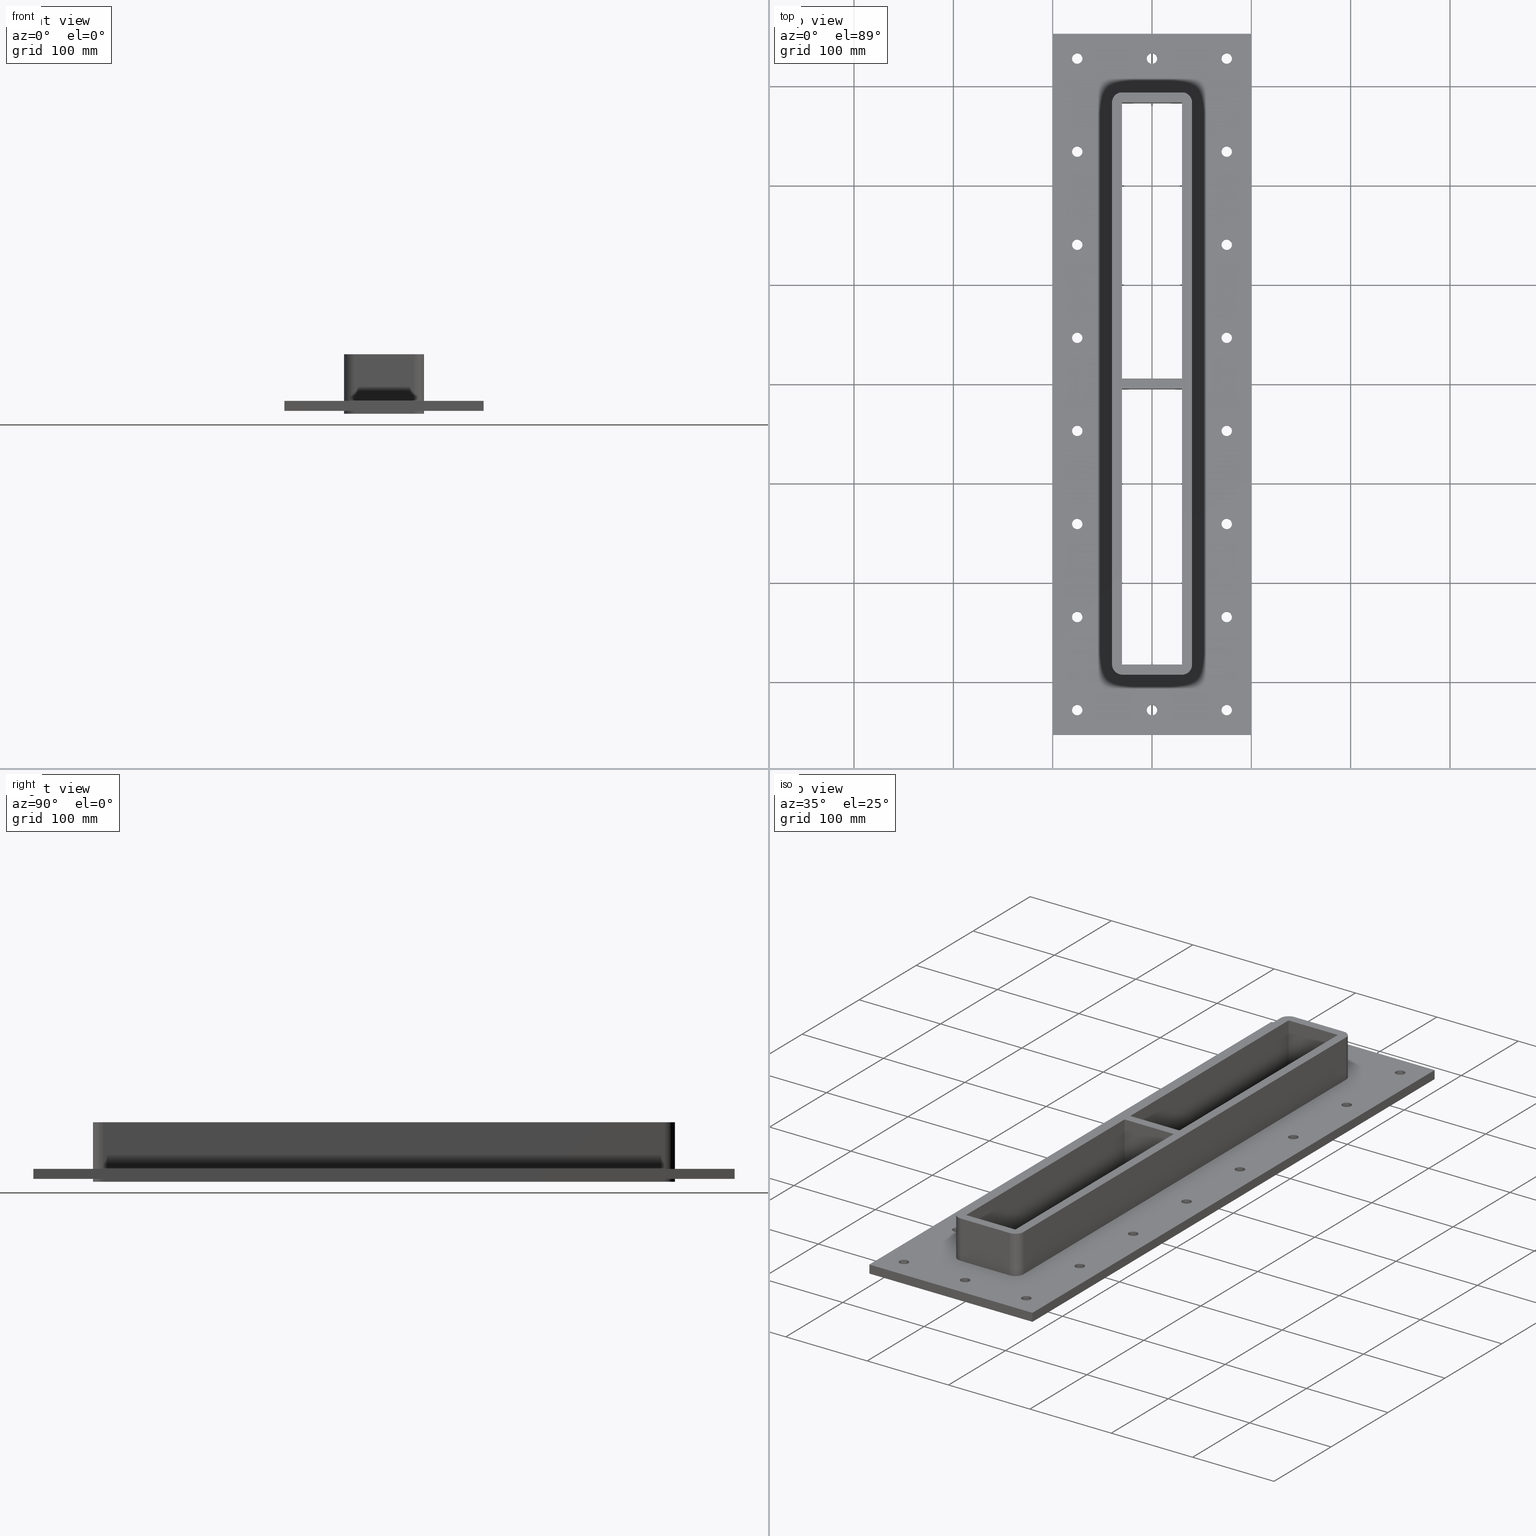
[diagram: canonical four-view strip — front | top / right | iso, engineering-drawing reading convention]
A machine part, canonical four-view strip (front | top / right | iso — engineering-drawing reading convention). The complete STEP part file that produces these views, byte-faithful:
ISO-10303-21;
HEADER;
/****************************************************************
 * Generated by software with PDElib inside                    *
 * PDElib Version v51a, created Wed 11/30/2011                  *
 * ITI Transcendata (http://www.transcendata.com/)              *
 ****************************************************************/
FILE_DESCRIPTION((''),'2;1');
FILE_NAME('C:\\Users\\se-milkar\\Desktop\\SFHM GENERATOR\\File dump\\SFHM7+7X1.stp','2017-01-17T17:27:08',(''),(''),'Autodesk Inventor 2013','Autodesk Inventor 2013','');
FILE_SCHEMA(('AUTOMOTIVE_DESIGN { 1 0 10303 214 1 1 1 1 }'));
ENDSEC;
DATA;
#5=APPLICATION_CONTEXT('automotive design');
#6=APPLICATION_PROTOCOL_DEFINITION('International Standard','automotive_design',2001,#5);
#7=PRODUCT_CONTEXT('',#5,'mechanical');
#8=PRODUCT('RTD-FRAME GENERATOR SF-LABB','RTD-FRAME GENERATOR SF-LABB',$,(#7));
#9=PRODUCT_RELATED_PRODUCT_CATEGORY('part',$,(#8));
#10=PRODUCT_DEFINITION_FORMATION('',$,#8);
#11=PRODUCT_DEFINITION_CONTEXT('part definition',#5,'design');
#12=PRODUCT_DEFINITION('',$,#10,#11);
#18=(NAMED_UNIT(*)PLANE_ANGLE_UNIT()SI_UNIT($,.RADIAN.));
#19=DIMENSIONAL_EXPONENTS(0.0,0.0,0.0,0.0,0.0,0.0,0.0);
#20=PLANE_ANGLE_MEASURE_WITH_UNIT(PLANE_ANGLE_MEASURE(0.0174532925),#18);
#24=(CONVERSION_BASED_UNIT('DEGREE',#20)NAMED_UNIT(#19)PLANE_ANGLE_UNIT());
#28=(NAMED_UNIT(*)SI_UNIT($,.STERADIAN.)SOLID_ANGLE_UNIT());
#32=(LENGTH_UNIT()NAMED_UNIT(*)SI_UNIT(.MILLI.,.METRE.));
#34=UNCERTAINTY_MEASURE_WITH_UNIT(LENGTH_MEASURE(0.01),#32,'DISTANCE_ACCURACY_VALUE','');
#36=(GEOMETRIC_REPRESENTATION_CONTEXT(3)GLOBAL_UNCERTAINTY_ASSIGNED_CONTEXT((#34))GLOBAL_UNIT_ASSIGNED_CONTEXT((#24,#28,#32))REPRESENTATION_CONTEXT('None','None'));
#37=AXIS2_PLACEMENT_3D('',#38,#39,#40);
#38=CARTESIAN_POINT('',(0.0,0.0,0.0));
#39=DIRECTION('',(0.0,0.0,1.0));
#40=DIRECTION('',(1.0,0.0,0.0));
#41=SHAPE_REPRESENTATION('',(#37),#36);
#42=PRODUCT_DEFINITION_SHAPE('','',#12);
#43=SHAPE_DEFINITION_REPRESENTATION(#42,#41);
#49=(NAMED_UNIT(*)PLANE_ANGLE_UNIT()SI_UNIT($,.RADIAN.));
#50=DIMENSIONAL_EXPONENTS(0.0,0.0,0.0,0.0,0.0,0.0,0.0);
#51=PLANE_ANGLE_MEASURE_WITH_UNIT(PLANE_ANGLE_MEASURE(0.0174532925),#49);
#55=(CONVERSION_BASED_UNIT('DEGREE',#51)NAMED_UNIT(#50)PLANE_ANGLE_UNIT());
#59=(NAMED_UNIT(*)SI_UNIT($,.STERADIAN.)SOLID_ANGLE_UNIT());
#63=(LENGTH_UNIT()NAMED_UNIT(*)SI_UNIT(.MILLI.,.METRE.));
#65=UNCERTAINTY_MEASURE_WITH_UNIT(LENGTH_MEASURE(0.000001),#63,'DISTANCE_ACCURACY_VALUE','');
#67=(GEOMETRIC_REPRESENTATION_CONTEXT(3)GLOBAL_UNCERTAINTY_ASSIGNED_CONTEXT((#65))GLOBAL_UNIT_ASSIGNED_CONTEXT((#55,#59,#63))REPRESENTATION_CONTEXT('','3D'));
#68=CARTESIAN_POINT('',(5.329071E-014,-328.00000000000006,-753.36692619916084));
#69=DIRECTION('',(0.0,0.0,1.0));
#70=DIRECTION('',(1.0,0.0,0.0));
#71=AXIS2_PLACEMENT_3D('',#68,#69,#70);
#72=CYLINDRICAL_SURFACE('',#71,5.25);
#73=CARTESIAN_POINT('',(-5.24999999999995,-328.00000000000006,-27.000000000000028));
#74=VERTEX_POINT('',#73);
#75=CARTESIAN_POINT('',(5.329071E-014,-328.00000000000006,-27.000000000000028));
#76=DIRECTION('',(0.0,0.0,1.0));
#77=DIRECTION('',(1.0,0.0,0.0));
#78=AXIS2_PLACEMENT_3D('',#75,#76,#77);
#79=CIRCLE('',#78,5.25);
#80=EDGE_CURVE('',#74,#74,#79,.T.);
#81=ORIENTED_EDGE('',*,*,#80,.F.);
#82=EDGE_LOOP('',(#81));
#83=FACE_OUTER_BOUND('',#82,.T.);
#84=CARTESIAN_POINT('',(5.250000000000048,-328.00000000000006,-17.0));
#85=VERTEX_POINT('',#84);
#86=CARTESIAN_POINT('',(5.329071E-014,-328.00000000000006,-17.000000000000028));
#87=DIRECTION('',(0.0,0.0,-1.0));
#88=DIRECTION('',(1.0,0.0,0.0));
#89=AXIS2_PLACEMENT_3D('',#86,#87,#88);
#90=CIRCLE('',#89,5.25);
#91=EDGE_CURVE('',#85,#85,#90,.T.);
#92=ORIENTED_EDGE('',*,*,#91,.F.);
#93=EDGE_LOOP('',(#92));
#94=FACE_BOUND('',#93,.T.);
#95=ADVANCED_FACE('',(#83,#94),#72,.F.);
#96=CARTESIAN_POINT('',(-6.217249E-014,328.00000000000006,-753.36692619916084));
#97=DIRECTION('',(0.0,0.0,1.0));
#98=DIRECTION('',(1.0,0.0,0.0));
#99=AXIS2_PLACEMENT_3D('',#96,#97,#98);
#100=CYLINDRICAL_SURFACE('',#99,5.25);
#101=CARTESIAN_POINT('',(-5.250000000000057,328.00000000000006,-27.000000000000028));
#102=VERTEX_POINT('',#101);
#103=CARTESIAN_POINT('',(-6.217249E-014,328.00000000000006,-27.000000000000028));
#104=DIRECTION('',(0.0,0.0,1.0));
#105=DIRECTION('',(1.0,0.0,0.0));
#106=AXIS2_PLACEMENT_3D('',#103,#104,#105);
#107=CIRCLE('',#106,5.25);
#108=EDGE_CURVE('',#102,#102,#107,.T.);
#109=ORIENTED_EDGE('',*,*,#108,.F.);
#110=EDGE_LOOP('',(#109));
#111=FACE_OUTER_BOUND('',#110,.T.);
#112=CARTESIAN_POINT('',(5.249999999999941,328.00000000000006,-17.0));
#113=VERTEX_POINT('',#112);
#114=CARTESIAN_POINT('',(-6.217249E-014,328.00000000000006,-17.000000000000028));
#115=DIRECTION('',(0.0,0.0,-1.0));
#116=DIRECTION('',(1.0,0.0,0.0));
#117=AXIS2_PLACEMENT_3D('',#114,#115,#116);
#118=CIRCLE('',#117,5.25);
#119=EDGE_CURVE('',#113,#113,#118,.T.);
#120=ORIENTED_EDGE('',*,*,#119,.F.);
#121=EDGE_LOOP('',(#120));
#122=FACE_BOUND('',#121,.T.);
#123=ADVANCED_FACE('',(#111,#122),#100,.F.);
#124=CARTESIAN_POINT('',(75.250000000000028,-234.28571428571422,-753.36692619916084));
#125=DIRECTION('',(0.0,0.0,1.0));
#126=DIRECTION('',(1.0,0.0,0.0));
#127=AXIS2_PLACEMENT_3D('',#124,#125,#126);
#128=CYLINDRICAL_SURFACE('',#127,5.25);
#129=CARTESIAN_POINT('',(70.000000000000028,-234.28571428571422,-27.000000000000028));
#130=VERTEX_POINT('',#129);
#131=CARTESIAN_POINT('',(75.250000000000028,-234.28571428571422,-27.000000000000028));
#132=DIRECTION('',(0.0,0.0,1.0));
#133=DIRECTION('',(1.0,0.0,0.0));
#134=AXIS2_PLACEMENT_3D('',#131,#132,#133);
#135=CIRCLE('',#134,5.25);
#136=EDGE_CURVE('',#130,#130,#135,.T.);
#137=ORIENTED_EDGE('',*,*,#136,.F.);
#138=EDGE_LOOP('',(#137));
#139=FACE_OUTER_BOUND('',#138,.T.);
#140=CARTESIAN_POINT('',(80.500000000000028,-234.28571428571422,-17.0));
#141=VERTEX_POINT('',#140);
#142=CARTESIAN_POINT('',(75.250000000000028,-234.28571428571422,-17.000000000000028));
#143=DIRECTION('',(0.0,0.0,-1.0));
#144=DIRECTION('',(1.0,0.0,0.0));
#145=AXIS2_PLACEMENT_3D('',#142,#143,#144);
#146=CIRCLE('',#145,5.25);
#147=EDGE_CURVE('',#141,#141,#146,.T.);
#148=ORIENTED_EDGE('',*,*,#147,.F.);
#149=EDGE_LOOP('',(#148));
#150=FACE_BOUND('',#149,.T.);
#151=ADVANCED_FACE('',(#139,#150),#128,.F.);
#152=CARTESIAN_POINT('',(75.250000000000014,-140.57142857142856,-753.36692619916084));
#153=DIRECTION('',(0.0,0.0,1.0));
#154=DIRECTION('',(1.0,0.0,0.0));
#155=AXIS2_PLACEMENT_3D('',#152,#153,#154);
#156=CYLINDRICAL_SURFACE('',#155,5.25);
#157=CARTESIAN_POINT('',(70.000000000000014,-140.57142857142856,-27.000000000000028));
#158=VERTEX_POINT('',#157);
#159=CARTESIAN_POINT('',(75.250000000000014,-140.57142857142856,-27.000000000000028));
#160=DIRECTION('',(0.0,0.0,1.0));
#161=DIRECTION('',(1.0,0.0,0.0));
#162=AXIS2_PLACEMENT_3D('',#159,#160,#161);
#163=CIRCLE('',#162,5.25);
#164=EDGE_CURVE('',#158,#158,#163,.T.);
#165=ORIENTED_EDGE('',*,*,#164,.F.);
#166=EDGE_LOOP('',(#165));
#167=FACE_OUTER_BOUND('',#166,.T.);
#168=CARTESIAN_POINT('',(80.500000000000028,-140.57142857142856,-17.0));
#169=VERTEX_POINT('',#168);
#170=CARTESIAN_POINT('',(75.250000000000014,-140.57142857142856,-17.000000000000028));
#171=DIRECTION('',(0.0,0.0,-1.0));
#172=DIRECTION('',(1.0,0.0,0.0));
#173=AXIS2_PLACEMENT_3D('',#170,#171,#172);
#174=CIRCLE('',#173,5.25);
#175=EDGE_CURVE('',#169,#169,#174,.T.);
#176=ORIENTED_EDGE('',*,*,#175,.F.);
#177=EDGE_LOOP('',(#176));
#178=FACE_BOUND('',#177,.T.);
#179=ADVANCED_FACE('',(#167,#178),#156,.F.);
#180=CARTESIAN_POINT('',(75.25,-46.857142857142819,-753.36692619916084));
#181=DIRECTION('',(0.0,0.0,1.0));
#182=DIRECTION('',(1.0,0.0,0.0));
#183=AXIS2_PLACEMENT_3D('',#180,#181,#182);
#184=CYLINDRICAL_SURFACE('',#183,5.25);
#185=CARTESIAN_POINT('',(70.0,-46.857142857142819,-27.000000000000028));
#186=VERTEX_POINT('',#185);
#187=CARTESIAN_POINT('',(75.25,-46.857142857142819,-27.000000000000028));
#188=DIRECTION('',(0.0,0.0,1.0));
#189=DIRECTION('',(1.0,0.0,0.0));
#190=AXIS2_PLACEMENT_3D('',#187,#188,#189);
#191=CIRCLE('',#190,5.25);
#192=EDGE_CURVE('',#186,#186,#191,.T.);
#193=ORIENTED_EDGE('',*,*,#192,.F.);
#194=EDGE_LOOP('',(#193));
#195=FACE_OUTER_BOUND('',#194,.T.);
#196=CARTESIAN_POINT('',(80.5,-46.857142857142819,-17.0));
#197=VERTEX_POINT('',#196);
#198=CARTESIAN_POINT('',(75.25,-46.857142857142819,-17.000000000000028));
#199=DIRECTION('',(0.0,0.0,-1.0));
#200=DIRECTION('',(1.0,0.0,0.0));
#201=AXIS2_PLACEMENT_3D('',#198,#199,#200);
#202=CIRCLE('',#201,5.25);
#203=EDGE_CURVE('',#197,#197,#202,.T.);
#204=ORIENTED_EDGE('',*,*,#203,.F.);
#205=EDGE_LOOP('',(#204));
#206=FACE_BOUND('',#205,.T.);
#207=ADVANCED_FACE('',(#195,#206),#184,.F.);
#208=CARTESIAN_POINT('',(75.25,46.857142857142918,-753.36692619916084));
#209=DIRECTION('',(0.0,0.0,1.0));
#210=DIRECTION('',(1.0,0.0,0.0));
#211=AXIS2_PLACEMENT_3D('',#208,#209,#210);
#212=CYLINDRICAL_SURFACE('',#211,5.25);
#213=CARTESIAN_POINT('',(69.999999999999986,46.857142857142918,-27.000000000000028));
#214=VERTEX_POINT('',#213);
#215=CARTESIAN_POINT('',(75.25,46.857142857142918,-27.000000000000028));
#216=DIRECTION('',(0.0,0.0,1.0));
#217=DIRECTION('',(1.0,0.0,0.0));
#218=AXIS2_PLACEMENT_3D('',#215,#216,#217);
#219=CIRCLE('',#218,5.25);
#220=EDGE_CURVE('',#214,#214,#219,.T.);
#221=ORIENTED_EDGE('',*,*,#220,.F.);
#222=EDGE_LOOP('',(#221));
#223=FACE_OUTER_BOUND('',#222,.T.);
#224=CARTESIAN_POINT('',(80.499999999999986,46.857142857142918,-17.0));
#225=VERTEX_POINT('',#224);
#226=CARTESIAN_POINT('',(75.25,46.857142857142918,-17.000000000000028));
#227=DIRECTION('',(0.0,0.0,-1.0));
#228=DIRECTION('',(1.0,0.0,0.0));
#229=AXIS2_PLACEMENT_3D('',#226,#227,#228);
#230=CIRCLE('',#229,5.25);
#231=EDGE_CURVE('',#225,#225,#230,.T.);
#232=ORIENTED_EDGE('',*,*,#231,.F.);
#233=EDGE_LOOP('',(#232));
#234=FACE_BOUND('',#233,.T.);
#235=ADVANCED_FACE('',(#223,#234),#212,.F.);
#236=CARTESIAN_POINT('',(75.249999999999972,140.57142857142858,-753.36692619916084));
#237=DIRECTION('',(0.0,0.0,1.0));
#238=DIRECTION('',(1.0,0.0,0.0));
#239=AXIS2_PLACEMENT_3D('',#236,#237,#238);
#240=CYLINDRICAL_SURFACE('',#239,5.25);
#241=CARTESIAN_POINT('',(69.999999999999972,140.57142857142858,-27.000000000000028));
#242=VERTEX_POINT('',#241);
#243=CARTESIAN_POINT('',(75.249999999999972,140.57142857142858,-27.000000000000028));
#244=DIRECTION('',(0.0,0.0,1.0));
#245=DIRECTION('',(1.0,0.0,0.0));
#246=AXIS2_PLACEMENT_3D('',#243,#244,#245);
#247=CIRCLE('',#246,5.25);
#248=EDGE_CURVE('',#242,#242,#247,.T.);
#249=ORIENTED_EDGE('',*,*,#248,.F.);
#250=EDGE_LOOP('',(#249));
#251=FACE_OUTER_BOUND('',#250,.T.);
#252=CARTESIAN_POINT('',(80.499999999999986,140.57142857142858,-17.0));
#253=VERTEX_POINT('',#252);
#254=CARTESIAN_POINT('',(75.249999999999972,140.57142857142858,-17.000000000000028));
#255=DIRECTION('',(0.0,0.0,-1.0));
#256=DIRECTION('',(1.0,0.0,0.0));
#257=AXIS2_PLACEMENT_3D('',#254,#255,#256);
#258=CIRCLE('',#257,5.25);
#259=EDGE_CURVE('',#253,#253,#258,.T.);
#260=ORIENTED_EDGE('',*,*,#259,.F.);
#261=EDGE_LOOP('',(#260));
#262=FACE_BOUND('',#261,.T.);
#263=ADVANCED_FACE('',(#251,#262),#240,.F.);
#264=CARTESIAN_POINT('',(75.249999999999972,234.28571428571431,-753.36692619916084));
#265=DIRECTION('',(0.0,0.0,1.0));
#266=DIRECTION('',(1.0,0.0,0.0));
#267=AXIS2_PLACEMENT_3D('',#264,#265,#266);
#268=CYLINDRICAL_SURFACE('',#267,5.25);
#269=CARTESIAN_POINT('',(69.999999999999972,234.28571428571431,-27.000000000000028));
#270=VERTEX_POINT('',#269);
#271=CARTESIAN_POINT('',(75.249999999999972,234.28571428571431,-27.000000000000028));
#272=DIRECTION('',(0.0,0.0,1.0));
#273=DIRECTION('',(1.0,0.0,0.0));
#274=AXIS2_PLACEMENT_3D('',#271,#272,#273);
#275=CIRCLE('',#274,5.25);
#276=EDGE_CURVE('',#270,#270,#275,.T.);
#277=ORIENTED_EDGE('',*,*,#276,.F.);
#278=EDGE_LOOP('',(#277));
#279=FACE_OUTER_BOUND('',#278,.T.);
#280=CARTESIAN_POINT('',(80.499999999999972,234.28571428571431,-17.0));
#281=VERTEX_POINT('',#280);
#282=CARTESIAN_POINT('',(75.249999999999972,234.28571428571431,-17.000000000000028));
#283=DIRECTION('',(0.0,0.0,-1.0));
#284=DIRECTION('',(1.0,0.0,0.0));
#285=AXIS2_PLACEMENT_3D('',#282,#283,#284);
#286=CIRCLE('',#285,5.25);
#287=EDGE_CURVE('',#281,#281,#286,.T.);
#288=ORIENTED_EDGE('',*,*,#287,.F.);
#289=EDGE_LOOP('',(#288));
#290=FACE_BOUND('',#289,.T.);
#291=ADVANCED_FACE('',(#279,#290),#268,.F.);
#292=CARTESIAN_POINT('',(-75.250000000000043,234.28571428571439,-753.36692619916084));
#293=DIRECTION('',(0.0,0.0,1.0));
#294=DIRECTION('',(1.0,0.0,0.0));
#295=AXIS2_PLACEMENT_3D('',#292,#293,#294);
#296=CYLINDRICAL_SURFACE('',#295,5.25);
#297=CARTESIAN_POINT('',(-80.500000000000043,234.28571428571439,-27.000000000000028));
#298=VERTEX_POINT('',#297);
#299=CARTESIAN_POINT('',(-75.250000000000043,234.28571428571439,-27.000000000000028));
#300=DIRECTION('',(0.0,0.0,1.0));
#301=DIRECTION('',(1.0,0.0,0.0));
#302=AXIS2_PLACEMENT_3D('',#299,#300,#301);
#303=CIRCLE('',#302,5.25);
#304=EDGE_CURVE('',#298,#298,#303,.T.);
#305=ORIENTED_EDGE('',*,*,#304,.F.);
#306=EDGE_LOOP('',(#305));
#307=FACE_OUTER_BOUND('',#306,.T.);
#308=CARTESIAN_POINT('',(-70.000000000000043,234.28571428571439,-17.0));
#309=VERTEX_POINT('',#308);
#310=CARTESIAN_POINT('',(-75.250000000000043,234.28571428571439,-17.000000000000028));
#311=DIRECTION('',(0.0,0.0,-1.0));
#312=DIRECTION('',(1.0,0.0,0.0));
#313=AXIS2_PLACEMENT_3D('',#310,#311,#312);
#314=CIRCLE('',#313,5.25);
#315=EDGE_CURVE('',#309,#309,#314,.T.);
#316=ORIENTED_EDGE('',*,*,#315,.F.);
#317=EDGE_LOOP('',(#316));
#318=FACE_BOUND('',#317,.T.);
#319=ADVANCED_FACE('',(#307,#318),#296,.F.);
#320=CARTESIAN_POINT('',(-75.250000000000028,140.5714285714287,-753.36692619916084));
#321=DIRECTION('',(0.0,0.0,1.0));
#322=DIRECTION('',(1.0,0.0,0.0));
#323=AXIS2_PLACEMENT_3D('',#320,#321,#322);
#324=CYLINDRICAL_SURFACE('',#323,5.25);
#325=CARTESIAN_POINT('',(-80.500000000000028,140.5714285714287,-27.000000000000028));
#326=VERTEX_POINT('',#325);
#327=CARTESIAN_POINT('',(-75.250000000000028,140.5714285714287,-27.000000000000028));
#328=DIRECTION('',(0.0,0.0,1.0));
#329=DIRECTION('',(1.0,0.0,0.0));
#330=AXIS2_PLACEMENT_3D('',#327,#328,#329);
#331=CIRCLE('',#330,5.25);
#332=EDGE_CURVE('',#326,#326,#331,.T.);
#333=ORIENTED_EDGE('',*,*,#332,.F.);
#334=EDGE_LOOP('',(#333));
#335=FACE_OUTER_BOUND('',#334,.T.);
#336=CARTESIAN_POINT('',(-70.000000000000028,140.5714285714287,-17.0));
#337=VERTEX_POINT('',#336);
#338=CARTESIAN_POINT('',(-75.250000000000028,140.5714285714287,-17.000000000000028));
#339=DIRECTION('',(0.0,0.0,-1.0));
#340=DIRECTION('',(1.0,0.0,0.0));
#341=AXIS2_PLACEMENT_3D('',#338,#339,#340);
#342=CIRCLE('',#341,5.25);
#343=EDGE_CURVE('',#337,#337,#342,.T.);
#344=ORIENTED_EDGE('',*,*,#343,.F.);
#345=EDGE_LOOP('',(#344));
#346=FACE_BOUND('',#345,.T.);
#347=ADVANCED_FACE('',(#335,#346),#324,.F.);
#348=CARTESIAN_POINT('',(-75.250000000000028,46.857142857142961,-753.36692619916084));
#349=DIRECTION('',(0.0,0.0,1.0));
#350=DIRECTION('',(1.0,0.0,0.0));
#351=AXIS2_PLACEMENT_3D('',#348,#349,#350);
#352=CYLINDRICAL_SURFACE('',#351,5.25);
#353=CARTESIAN_POINT('',(-80.5,46.857142857142961,-27.000000000000028));
#354=VERTEX_POINT('',#353);
#355=CARTESIAN_POINT('',(-75.250000000000028,46.857142857142961,-27.000000000000028));
#356=DIRECTION('',(0.0,0.0,1.0));
#357=DIRECTION('',(1.0,0.0,0.0));
#358=AXIS2_PLACEMENT_3D('',#355,#356,#357);
#359=CIRCLE('',#358,5.25);
#360=EDGE_CURVE('',#354,#354,#359,.T.);
#361=ORIENTED_EDGE('',*,*,#360,.F.);
#362=EDGE_LOOP('',(#361));
#363=FACE_OUTER_BOUND('',#362,.T.);
#364=CARTESIAN_POINT('',(-70.000000000000014,46.857142857142961,-17.0));
#365=VERTEX_POINT('',#364);
#366=CARTESIAN_POINT('',(-75.250000000000028,46.857142857142961,-17.000000000000028));
#367=DIRECTION('',(0.0,0.0,-1.0));
#368=DIRECTION('',(1.0,0.0,0.0));
#369=AXIS2_PLACEMENT_3D('',#366,#367,#368);
#370=CIRCLE('',#369,5.25);
#371=EDGE_CURVE('',#365,#365,#370,.T.);
#372=ORIENTED_EDGE('',*,*,#371,.F.);
#373=EDGE_LOOP('',(#372));
#374=FACE_BOUND('',#373,.T.);
#375=ADVANCED_FACE('',(#363,#374),#352,.F.);
#376=CARTESIAN_POINT('',(-75.25,-46.857142857142776,-753.36692619916084));
#377=DIRECTION('',(0.0,0.0,1.0));
#378=DIRECTION('',(1.0,0.0,0.0));
#379=AXIS2_PLACEMENT_3D('',#376,#377,#378);
#380=CYLINDRICAL_SURFACE('',#379,5.25);
#381=CARTESIAN_POINT('',(-80.5,-46.857142857142776,-27.000000000000028));
#382=VERTEX_POINT('',#381);
#383=CARTESIAN_POINT('',(-75.25,-46.857142857142776,-27.000000000000028));
#384=DIRECTION('',(0.0,0.0,1.0));
#385=DIRECTION('',(1.0,0.0,0.0));
#386=AXIS2_PLACEMENT_3D('',#383,#384,#385);
#387=CIRCLE('',#386,5.25);
#388=EDGE_CURVE('',#382,#382,#387,.T.);
#389=ORIENTED_EDGE('',*,*,#388,.F.);
#390=EDGE_LOOP('',(#389));
#391=FACE_OUTER_BOUND('',#390,.T.);
#392=CARTESIAN_POINT('',(-70.0,-46.857142857142776,-17.0));
#393=VERTEX_POINT('',#392);
#394=CARTESIAN_POINT('',(-75.25,-46.857142857142776,-17.000000000000028));
#395=DIRECTION('',(0.0,0.0,-1.0));
#396=DIRECTION('',(1.0,0.0,0.0));
#397=AXIS2_PLACEMENT_3D('',#394,#395,#396);
#398=CIRCLE('',#397,5.25);
#399=EDGE_CURVE('',#393,#393,#398,.T.);
#400=ORIENTED_EDGE('',*,*,#399,.F.);
#401=EDGE_LOOP('',(#400));
#402=FACE_BOUND('',#401,.T.);
#403=ADVANCED_FACE('',(#391,#402),#380,.F.);
#404=CARTESIAN_POINT('',(-75.25,-140.57142857142844,-753.36692619916084));
#405=DIRECTION('',(0.0,0.0,1.0));
#406=DIRECTION('',(1.0,0.0,0.0));
#407=AXIS2_PLACEMENT_3D('',#404,#405,#406);
#408=CYLINDRICAL_SURFACE('',#407,5.25);
#409=CARTESIAN_POINT('',(-80.499999999999986,-140.57142857142844,-27.000000000000028));
#410=VERTEX_POINT('',#409);
#411=CARTESIAN_POINT('',(-75.25,-140.57142857142844,-27.000000000000028));
#412=DIRECTION('',(0.0,0.0,1.0));
#413=DIRECTION('',(1.0,0.0,0.0));
#414=AXIS2_PLACEMENT_3D('',#411,#412,#413);
#415=CIRCLE('',#414,5.25);
#416=EDGE_CURVE('',#410,#410,#415,.T.);
#417=ORIENTED_EDGE('',*,*,#416,.F.);
#418=EDGE_LOOP('',(#417));
#419=FACE_OUTER_BOUND('',#418,.T.);
#420=CARTESIAN_POINT('',(-69.999999999999986,-140.57142857142844,-17.0));
#421=VERTEX_POINT('',#420);
#422=CARTESIAN_POINT('',(-75.25,-140.57142857142844,-17.000000000000028));
#423=DIRECTION('',(0.0,0.0,-1.0));
#424=DIRECTION('',(1.0,0.0,0.0));
#425=AXIS2_PLACEMENT_3D('',#422,#423,#424);
#426=CIRCLE('',#425,5.25);
#427=EDGE_CURVE('',#421,#421,#426,.T.);
#428=ORIENTED_EDGE('',*,*,#427,.F.);
#429=EDGE_LOOP('',(#428));
#430=FACE_BOUND('',#429,.T.);
#431=ADVANCED_FACE('',(#419,#430),#408,.F.);
#432=CARTESIAN_POINT('',(-75.249999999999972,-234.28571428571416,-753.36692619916084));
#433=DIRECTION('',(0.0,0.0,1.0));
#434=DIRECTION('',(1.0,0.0,0.0));
#435=AXIS2_PLACEMENT_3D('',#432,#433,#434);
#436=CYLINDRICAL_SURFACE('',#435,5.25);
#437=CARTESIAN_POINT('',(-80.499999999999972,-234.28571428571416,-27.000000000000028));
#438=VERTEX_POINT('',#437);
#439=CARTESIAN_POINT('',(-75.249999999999972,-234.28571428571416,-27.000000000000028));
#440=DIRECTION('',(0.0,0.0,1.0));
#441=DIRECTION('',(1.0,0.0,0.0));
#442=AXIS2_PLACEMENT_3D('',#439,#440,#441);
#443=CIRCLE('',#442,5.25);
#444=EDGE_CURVE('',#438,#438,#443,.T.);
#445=ORIENTED_EDGE('',*,*,#444,.F.);
#446=EDGE_LOOP('',(#445));
#447=FACE_OUTER_BOUND('',#446,.T.);
#448=CARTESIAN_POINT('',(-69.999999999999972,-234.28571428571416,-17.0));
#449=VERTEX_POINT('',#448);
#450=CARTESIAN_POINT('',(-75.249999999999972,-234.28571428571416,-17.000000000000028));
#451=DIRECTION('',(0.0,0.0,-1.0));
#452=DIRECTION('',(1.0,0.0,0.0));
#453=AXIS2_PLACEMENT_3D('',#450,#451,#452);
#454=CIRCLE('',#453,5.25);
#455=EDGE_CURVE('',#449,#449,#454,.T.);
#456=ORIENTED_EDGE('',*,*,#455,.F.);
#457=EDGE_LOOP('',(#456));
#458=FACE_BOUND('',#457,.T.);
#459=ADVANCED_FACE('',(#447,#458),#436,.F.);
#460=CARTESIAN_POINT('',(-75.250000000000071,328.00000000000006,-753.36692619916084));
#461=DIRECTION('',(0.0,0.0,1.0));
#462=DIRECTION('',(1.0,0.0,0.0));
#463=AXIS2_PLACEMENT_3D('',#460,#461,#462);
#464=CYLINDRICAL_SURFACE('',#463,5.25);
#465=CARTESIAN_POINT('',(-80.500000000000057,328.00000000000006,-27.000000000000028));
#466=VERTEX_POINT('',#465);
#467=CARTESIAN_POINT('',(-75.250000000000071,328.00000000000006,-27.000000000000028));
#468=DIRECTION('',(0.0,0.0,1.0));
#469=DIRECTION('',(1.0,0.0,0.0));
#470=AXIS2_PLACEMENT_3D('',#467,#468,#469);
#471=CIRCLE('',#470,5.25);
#472=EDGE_CURVE('',#466,#466,#471,.T.);
#473=ORIENTED_EDGE('',*,*,#472,.F.);
#474=EDGE_LOOP('',(#473));
#475=FACE_OUTER_BOUND('',#474,.T.);
#476=CARTESIAN_POINT('',(-70.000000000000057,328.00000000000006,-17.0));
#477=VERTEX_POINT('',#476);
#478=CARTESIAN_POINT('',(-75.250000000000071,328.00000000000006,-17.000000000000028));
#479=DIRECTION('',(0.0,0.0,-1.0));
#480=DIRECTION('',(1.0,0.0,0.0));
#481=AXIS2_PLACEMENT_3D('',#478,#479,#480);
#482=CIRCLE('',#481,5.25);
#483=EDGE_CURVE('',#477,#477,#482,.T.);
#484=ORIENTED_EDGE('',*,*,#483,.F.);
#485=EDGE_LOOP('',(#484));
#486=FACE_BOUND('',#485,.T.);
#487=ADVANCED_FACE('',(#475,#486),#464,.F.);
#488=CARTESIAN_POINT('',(75.249999999999957,328.00000000000006,-753.36692619916084));
#489=DIRECTION('',(0.0,0.0,1.0));
#490=DIRECTION('',(1.0,0.0,0.0));
#491=AXIS2_PLACEMENT_3D('',#488,#489,#490);
#492=CYLINDRICAL_SURFACE('',#491,5.25);
#493=CARTESIAN_POINT('',(69.999999999999957,328.00000000000006,-27.000000000000028));
#494=VERTEX_POINT('',#493);
#495=CARTESIAN_POINT('',(75.249999999999957,328.00000000000006,-27.000000000000028));
#496=DIRECTION('',(0.0,0.0,1.0));
#497=DIRECTION('',(1.0,0.0,0.0));
#498=AXIS2_PLACEMENT_3D('',#495,#496,#497);
#499=CIRCLE('',#498,5.25);
#500=EDGE_CURVE('',#494,#494,#499,.T.);
#501=ORIENTED_EDGE('',*,*,#500,.F.);
#502=EDGE_LOOP('',(#501));
#503=FACE_OUTER_BOUND('',#502,.T.);
#504=CARTESIAN_POINT('',(80.499999999999957,328.00000000000006,-17.0));
#505=VERTEX_POINT('',#504);
#506=CARTESIAN_POINT('',(75.249999999999957,328.00000000000006,-17.000000000000028));
#507=DIRECTION('',(0.0,0.0,-1.0));
#508=DIRECTION('',(1.0,0.0,0.0));
#509=AXIS2_PLACEMENT_3D('',#506,#507,#508);
#510=CIRCLE('',#509,5.25);
#511=EDGE_CURVE('',#505,#505,#510,.T.);
#512=ORIENTED_EDGE('',*,*,#511,.F.);
#513=EDGE_LOOP('',(#512));
#514=FACE_BOUND('',#513,.T.);
#515=ADVANCED_FACE('',(#503,#514),#492,.F.);
#516=CARTESIAN_POINT('',(75.250000000000043,-328.00000000000006,-753.36692619916084));
#517=DIRECTION('',(0.0,0.0,1.0));
#518=DIRECTION('',(1.0,0.0,0.0));
#519=AXIS2_PLACEMENT_3D('',#516,#517,#518);
#520=CYLINDRICAL_SURFACE('',#519,5.25);
#521=CARTESIAN_POINT('',(70.000000000000043,-328.00000000000006,-27.000000000000028));
#522=VERTEX_POINT('',#521);
#523=CARTESIAN_POINT('',(75.250000000000043,-328.00000000000006,-27.000000000000028));
#524=DIRECTION('',(0.0,0.0,1.0));
#525=DIRECTION('',(1.0,0.0,0.0));
#526=AXIS2_PLACEMENT_3D('',#523,#524,#525);
#527=CIRCLE('',#526,5.25);
#528=EDGE_CURVE('',#522,#522,#527,.T.);
#529=ORIENTED_EDGE('',*,*,#528,.F.);
#530=EDGE_LOOP('',(#529));
#531=FACE_OUTER_BOUND('',#530,.T.);
#532=CARTESIAN_POINT('',(80.500000000000043,-328.00000000000006,-17.0));
#533=VERTEX_POINT('',#532);
#534=CARTESIAN_POINT('',(75.250000000000043,-328.00000000000006,-17.000000000000028));
#535=DIRECTION('',(0.0,0.0,-1.0));
#536=DIRECTION('',(1.0,0.0,0.0));
#537=AXIS2_PLACEMENT_3D('',#534,#535,#536);
#538=CIRCLE('',#537,5.25);
#539=EDGE_CURVE('',#533,#533,#538,.T.);
#540=ORIENTED_EDGE('',*,*,#539,.F.);
#541=EDGE_LOOP('',(#540));
#542=FACE_BOUND('',#541,.T.);
#543=ADVANCED_FACE('',(#531,#542),#520,.F.);
#544=CARTESIAN_POINT('',(-75.249999999999957,-327.99999999999989,-753.36692619916084));
#545=DIRECTION('',(0.0,0.0,1.0));
#546=DIRECTION('',(1.0,0.0,0.0));
#547=AXIS2_PLACEMENT_3D('',#544,#545,#546);
#548=CYLINDRICAL_SURFACE('',#547,5.25);
#549=CARTESIAN_POINT('',(-80.499999999999957,-327.99999999999989,-27.000000000000028));
#550=VERTEX_POINT('',#549);
#551=CARTESIAN_POINT('',(-75.249999999999957,-327.99999999999989,-27.000000000000028));
#552=DIRECTION('',(0.0,0.0,1.0));
#553=DIRECTION('',(1.0,0.0,0.0));
#554=AXIS2_PLACEMENT_3D('',#551,#552,#553);
#555=CIRCLE('',#554,5.25);
#556=EDGE_CURVE('',#550,#550,#555,.T.);
#557=ORIENTED_EDGE('',*,*,#556,.F.);
#558=EDGE_LOOP('',(#557));
#559=FACE_OUTER_BOUND('',#558,.T.);
#560=CARTESIAN_POINT('',(-69.999999999999957,-327.99999999999989,-17.0));
#561=VERTEX_POINT('',#560);
#562=CARTESIAN_POINT('',(-75.249999999999957,-327.99999999999989,-17.000000000000028));
#563=DIRECTION('',(0.0,0.0,-1.0));
#564=DIRECTION('',(1.0,0.0,0.0));
#565=AXIS2_PLACEMENT_3D('',#562,#563,#564);
#566=CIRCLE('',#565,5.25);
#567=EDGE_CURVE('',#561,#561,#566,.T.);
#568=ORIENTED_EDGE('',*,*,#567,.F.);
#569=EDGE_LOOP('',(#568));
#570=FACE_BOUND('',#569,.T.);
#571=ADVANCED_FACE('',(#559,#570),#548,.F.);
#572=CARTESIAN_POINT('',(-100.25000000000006,353.0,-27.0));
#573=DIRECTION('',(-1.0,0.0,0.0));
#574=DIRECTION('',(0.0,-1.0,0.0));
#575=AXIS2_PLACEMENT_3D('',#572,#573,#574);
#576=PLANE('',#575);
#577=CARTESIAN_POINT('',(-100.24999999999997,-353.0,-27.0));
#578=VERTEX_POINT('',#577);
#579=CARTESIAN_POINT('',(-100.25000000000006,353.00000000000006,-27.0));
#580=VERTEX_POINT('',#579);
#581=CARTESIAN_POINT('',(-100.24999999999997,-353.0,-27.0));
#582=DIRECTION('',(0.0,1.0,0.0));
#583=VECTOR('',#582,706.0);
#584=LINE('',#581,#583);
#585=EDGE_CURVE('',#578,#580,#584,.T.);
#586=ORIENTED_EDGE('',*,*,#585,.F.);
#587=CARTESIAN_POINT('',(-100.24999999999997,-353.0,-17.0));
#588=VERTEX_POINT('',#587);
#589=CARTESIAN_POINT('',(-100.24999999999997,-353.0,-27.0));
#590=DIRECTION('',(0.0,0.0,1.0));
#591=VECTOR('',#590,10.0);
#592=LINE('',#589,#591);
#593=EDGE_CURVE('',#578,#588,#592,.T.);
#594=ORIENTED_EDGE('',*,*,#593,.T.);
#595=CARTESIAN_POINT('',(-100.25000000000007,353.00000000000006,-17.0));
#596=VERTEX_POINT('',#595);
#597=CARTESIAN_POINT('',(-100.25000000000006,353.0,-17.0));
#598=DIRECTION('',(0.0,-1.0,0.0));
#599=VECTOR('',#598,706.0);
#600=LINE('',#597,#599);
#601=EDGE_CURVE('',#596,#588,#600,.T.);
#602=ORIENTED_EDGE('',*,*,#601,.F.);
#603=CARTESIAN_POINT('',(-100.25000000000006,353.00000000000006,-27.0));
#604=DIRECTION('',(0.0,0.0,1.0));
#605=VECTOR('',#604,10.0);
#606=LINE('',#603,#605);
#607=EDGE_CURVE('',#580,#596,#606,.T.);
#608=ORIENTED_EDGE('',*,*,#607,.F.);
#609=EDGE_LOOP('',(#586,#594,#602,#608));
#610=FACE_OUTER_BOUND('',#609,.T.);
#611=ADVANCED_FACE('',(#610),#576,.T.);
#612=CARTESIAN_POINT('',(100.24999999999994,353.00000000000006,-27.0));
#613=DIRECTION('',(0.0,1.0,0.0));
#614=DIRECTION('',(-1.0,0.0,0.0));
#615=AXIS2_PLACEMENT_3D('',#612,#613,#614);
#616=PLANE('',#615);
#617=CARTESIAN_POINT('',(100.24999999999994,353.00000000000006,-27.0));
#618=VERTEX_POINT('',#617);
#619=CARTESIAN_POINT('',(-100.25000000000006,353.00000000000006,-27.0));
#620=DIRECTION('',(1.0,0.0,0.0));
#621=VECTOR('',#620,200.5);
#622=LINE('',#619,#621);
#623=EDGE_CURVE('',#580,#618,#622,.T.);
#624=ORIENTED_EDGE('',*,*,#623,.F.);
#625=ORIENTED_EDGE('',*,*,#607,.T.);
#626=CARTESIAN_POINT('',(100.24999999999994,353.00000000000006,-17.0));
#627=VERTEX_POINT('',#626);
#628=CARTESIAN_POINT('',(100.24999999999994,353.00000000000006,-17.0));
#629=DIRECTION('',(-1.0,0.0,0.0));
#630=VECTOR('',#629,200.5);
#631=LINE('',#628,#630);
#632=EDGE_CURVE('',#627,#596,#631,.T.);
#633=ORIENTED_EDGE('',*,*,#632,.F.);
#634=CARTESIAN_POINT('',(100.24999999999994,353.00000000000006,-27.0));
#635=DIRECTION('',(0.0,0.0,1.0));
#636=VECTOR('',#635,10.0);
#637=LINE('',#634,#636);
#638=EDGE_CURVE('',#618,#627,#637,.T.);
#639=ORIENTED_EDGE('',*,*,#638,.F.);
#640=EDGE_LOOP('',(#624,#625,#633,#639));
#641=FACE_OUTER_BOUND('',#640,.T.);
#642=ADVANCED_FACE('',(#641),#616,.T.);
#643=CARTESIAN_POINT('',(100.25000000000004,-353.00000000000006,-27.0));
#644=DIRECTION('',(1.0,0.0,0.0));
#645=DIRECTION('',(0.0,1.0,0.0));
#646=AXIS2_PLACEMENT_3D('',#643,#644,#645);
#647=PLANE('',#646);
#648=CARTESIAN_POINT('',(100.25000000000004,-353.00000000000006,-27.0));
#649=VERTEX_POINT('',#648);
#650=CARTESIAN_POINT('',(100.24999999999994,353.00000000000006,-27.0));
#651=DIRECTION('',(0.0,-1.0,0.0));
#652=VECTOR('',#651,706.00000000000011);
#653=LINE('',#650,#652);
#654=EDGE_CURVE('',#618,#649,#653,.T.);
#655=ORIENTED_EDGE('',*,*,#654,.F.);
#656=ORIENTED_EDGE('',*,*,#638,.T.);
#657=CARTESIAN_POINT('',(100.25000000000004,-353.00000000000006,-17.0));
#658=VERTEX_POINT('',#657);
#659=CARTESIAN_POINT('',(100.25000000000003,-353.00000000000006,-17.0));
#660=DIRECTION('',(0.0,1.0,0.0));
#661=VECTOR('',#660,706.00000000000011);
#662=LINE('',#659,#661);
#663=EDGE_CURVE('',#658,#627,#662,.T.);
#664=ORIENTED_EDGE('',*,*,#663,.F.);
#665=CARTESIAN_POINT('',(100.25000000000004,-353.00000000000006,-27.0));
#666=DIRECTION('',(0.0,0.0,1.0));
#667=VECTOR('',#666,10.0);
#668=LINE('',#665,#667);
#669=EDGE_CURVE('',#649,#658,#668,.T.);
#670=ORIENTED_EDGE('',*,*,#669,.F.);
#671=EDGE_LOOP('',(#655,#656,#664,#670));
#672=FACE_OUTER_BOUND('',#671,.T.);
#673=ADVANCED_FACE('',(#672),#647,.T.);
#674=CARTESIAN_POINT('',(-100.24999999999997,-353.0,-27.0));
#675=DIRECTION('',(0.0,-1.0,0.0));
#676=DIRECTION('',(1.0,0.0,0.0));
#677=AXIS2_PLACEMENT_3D('',#674,#675,#676);
#678=PLANE('',#677);
#679=CARTESIAN_POINT('',(100.25000000000004,-353.00000000000006,-27.0));
#680=DIRECTION('',(-1.0,0.0,0.0));
#681=VECTOR('',#680,200.5);
#682=LINE('',#679,#681);
#683=EDGE_CURVE('',#649,#578,#682,.T.);
#684=ORIENTED_EDGE('',*,*,#683,.F.);
#685=ORIENTED_EDGE('',*,*,#669,.T.);
#686=CARTESIAN_POINT('',(-100.24999999999996,-353.0,-17.0));
#687=DIRECTION('',(1.0,0.0,0.0));
#688=VECTOR('',#687,200.5);
#689=LINE('',#686,#688);
#690=EDGE_CURVE('',#588,#658,#689,.T.);
#691=ORIENTED_EDGE('',*,*,#690,.F.);
#692=ORIENTED_EDGE('',*,*,#593,.F.);
#693=EDGE_LOOP('',(#684,#685,#691,#692));
#694=FACE_OUTER_BOUND('',#693,.T.);
#695=ADVANCED_FACE('',(#694),#678,.T.);
#696=CARTESIAN_POINT('',(-9.405971E-015,9.405971E-015,-17.0));
#697=DIRECTION('',(0.0,0.0,1.0));
#698=DIRECTION('',(1.0,0.0,0.0));
#699=AXIS2_PLACEMENT_3D('',#696,#697,#698);
#700=PLANE('',#699);
#701=ORIENTED_EDGE('',*,*,#690,.T.);
#702=ORIENTED_EDGE('',*,*,#663,.T.);
#703=ORIENTED_EDGE('',*,*,#632,.T.);
#704=ORIENTED_EDGE('',*,*,#601,.T.);
#705=EDGE_LOOP('',(#701,#702,#703,#704));
#706=FACE_OUTER_BOUND('',#705,.T.);
#707=ORIENTED_EDGE('',*,*,#91,.T.);
#708=EDGE_LOOP('',(#707));
#709=FACE_BOUND('',#708,.T.);
#710=ORIENTED_EDGE('',*,*,#119,.T.);
#711=EDGE_LOOP('',(#710));
#712=FACE_BOUND('',#711,.T.);
#713=ORIENTED_EDGE('',*,*,#147,.T.);
#714=EDGE_LOOP('',(#713));
#715=FACE_BOUND('',#714,.T.);
#716=ORIENTED_EDGE('',*,*,#175,.T.);
#717=EDGE_LOOP('',(#716));
#718=FACE_BOUND('',#717,.T.);
#719=ORIENTED_EDGE('',*,*,#203,.T.);
#720=EDGE_LOOP('',(#719));
#721=FACE_BOUND('',#720,.T.);
#722=ORIENTED_EDGE('',*,*,#231,.T.);
#723=EDGE_LOOP('',(#722));
#724=FACE_BOUND('',#723,.T.);
#725=ORIENTED_EDGE('',*,*,#259,.T.);
#726=EDGE_LOOP('',(#725));
#727=FACE_BOUND('',#726,.T.);
#728=ORIENTED_EDGE('',*,*,#287,.T.);
#729=EDGE_LOOP('',(#728));
#730=FACE_BOUND('',#729,.T.);
#731=ORIENTED_EDGE('',*,*,#315,.T.);
#732=EDGE_LOOP('',(#731));
#733=FACE_BOUND('',#732,.T.);
#734=ORIENTED_EDGE('',*,*,#343,.T.);
#735=EDGE_LOOP('',(#734));
#736=FACE_BOUND('',#735,.T.);
#737=ORIENTED_EDGE('',*,*,#371,.T.);
#738=EDGE_LOOP('',(#737));
#739=FACE_BOUND('',#738,.T.);
#740=ORIENTED_EDGE('',*,*,#399,.T.);
#741=EDGE_LOOP('',(#740));
#742=FACE_BOUND('',#741,.T.);
#743=ORIENTED_EDGE('',*,*,#427,.T.);
#744=EDGE_LOOP('',(#743));
#745=FACE_BOUND('',#744,.T.);
#746=ORIENTED_EDGE('',*,*,#455,.T.);
#747=EDGE_LOOP('',(#746));
#748=FACE_BOUND('',#747,.T.);
#749=ORIENTED_EDGE('',*,*,#483,.T.);
#750=EDGE_LOOP('',(#749));
#751=FACE_BOUND('',#750,.T.);
#752=ORIENTED_EDGE('',*,*,#511,.T.);
#753=EDGE_LOOP('',(#752));
#754=FACE_BOUND('',#753,.T.);
#755=ORIENTED_EDGE('',*,*,#539,.T.);
#756=EDGE_LOOP('',(#755));
#757=FACE_BOUND('',#756,.T.);
#758=ORIENTED_EDGE('',*,*,#567,.T.);
#759=EDGE_LOOP('',(#758));
#760=FACE_BOUND('',#759,.T.);
#761=CARTESIAN_POINT('',(40.249999999999972,283.00000000000006,-17.0));
#762=VERTEX_POINT('',#761);
#763=CARTESIAN_POINT('',(30.249999999999964,293.00000000000006,-17.0));
#764=VERTEX_POINT('',#763);
#765=CARTESIAN_POINT('',(30.249999999999943,282.99999999999989,-17.0));
#766=DIRECTION('',(0.0,0.0,1.0));
#767=DIRECTION('',(0.707106781186547,0.707106781186547,0.0));
#768=AXIS2_PLACEMENT_3D('',#765,#766,#767);
#769=CIRCLE('',#768,9.999999999999998);
#770=EDGE_CURVE('',#762,#764,#769,.T.);
#771=ORIENTED_EDGE('',*,*,#770,.F.);
#772=CARTESIAN_POINT('',(40.250000000000043,-283.0,-17.0));
#773=VERTEX_POINT('',#772);
#774=CARTESIAN_POINT('',(40.250000000000043,-283.0,-17.0));
#775=DIRECTION('',(0.0,1.0,0.0));
#776=VECTOR('',#775,566.0);
#777=LINE('',#774,#776);
#778=EDGE_CURVE('',#773,#762,#777,.T.);
#779=ORIENTED_EDGE('',*,*,#778,.F.);
#780=CARTESIAN_POINT('',(30.250000000000043,-293.0,-17.0));
#781=VERTEX_POINT('',#780);
#782=CARTESIAN_POINT('',(30.25000000000005,-283.00000000000011,-17.0));
#783=DIRECTION('',(0.0,0.0,1.0));
#784=DIRECTION('',(0.707106781186547,-0.707106781186547,0.0));
#785=AXIS2_PLACEMENT_3D('',#782,#783,#784);
#786=CIRCLE('',#785,9.999999999999998);
#787=EDGE_CURVE('',#781,#773,#786,.T.);
#788=ORIENTED_EDGE('',*,*,#787,.F.);
#789=CARTESIAN_POINT('',(-30.249999999999964,-293.0,-17.0));
#790=VERTEX_POINT('',#789);
#791=CARTESIAN_POINT('',(-30.249999999999964,-293.00000000000011,-17.0));
#792=DIRECTION('',(1.0,0.0,0.0));
#793=VECTOR('',#792,60.500000000000014);
#794=LINE('',#791,#793);
#795=EDGE_CURVE('',#790,#781,#794,.T.);
#796=ORIENTED_EDGE('',*,*,#795,.F.);
#797=CARTESIAN_POINT('',(-40.249999999999972,-283.0,-17.0));
#798=VERTEX_POINT('',#797);
#799=CARTESIAN_POINT('',(-30.249999999999893,-283.00000000000011,-17.0));
#800=DIRECTION('',(0.0,0.0,1.0));
#801=DIRECTION('',(-0.707106781186547,-0.707106781186548,0.0));
#802=AXIS2_PLACEMENT_3D('',#799,#800,#801);
#803=CIRCLE('',#802,9.999999999999998);
#804=EDGE_CURVE('',#798,#790,#803,.T.);
#805=ORIENTED_EDGE('',*,*,#804,.F.);
#806=CARTESIAN_POINT('',(-40.250000000000043,283.00000000000006,-17.0));
#807=VERTEX_POINT('',#806);
#808=CARTESIAN_POINT('',(-40.250000000000064,283.00000000000006,-17.0));
#809=DIRECTION('',(0.0,-1.0,0.0));
#810=VECTOR('',#809,566.0);
#811=LINE('',#808,#810);
#812=EDGE_CURVE('',#807,#798,#811,.T.);
#813=ORIENTED_EDGE('',*,*,#812,.F.);
#814=CARTESIAN_POINT('',(-30.250000000000043,293.00000000000006,-17.0));
#815=VERTEX_POINT('',#814);
#816=CARTESIAN_POINT('',(-30.250000000000064,282.99999999999989,-17.0));
#817=DIRECTION('',(0.0,0.0,1.0));
#818=DIRECTION('',(-0.707106781186547,0.707106781186547,0.0));
#819=AXIS2_PLACEMENT_3D('',#816,#817,#818);
#820=CIRCLE('',#819,9.999999999999998);
#821=EDGE_CURVE('',#815,#807,#820,.T.);
#822=ORIENTED_EDGE('',*,*,#821,.F.);
#823=CARTESIAN_POINT('',(30.249999999999964,292.99999999999989,-17.0));
#824=DIRECTION('',(-1.0,0.0,0.0));
#825=VECTOR('',#824,60.500000000000014);
#826=LINE('',#823,#825);
#827=EDGE_CURVE('',#764,#815,#826,.T.);
#828=ORIENTED_EDGE('',*,*,#827,.F.);
#829=EDGE_LOOP('',(#771,#779,#788,#796,#805,#813,#822,#828));
#830=FACE_BOUND('',#829,.T.);
#831=ADVANCED_FACE('',(#706,#709,#712,#715,#718,#721,#724,#727,#730,#733,#736,#739,#742,#745,#748,#751,#754,#757,#760,#830),#700,.T.);
#832=CARTESIAN_POINT('',(-9.405971E-015,9.405971E-015,-27.0));
#833=DIRECTION('',(0.0,0.0,1.0));
#834=DIRECTION('',(1.0,0.0,0.0));
#835=AXIS2_PLACEMENT_3D('',#832,#833,#834);
#836=PLANE('',#835);
#837=ORIENTED_EDGE('',*,*,#683,.T.);
#838=ORIENTED_EDGE('',*,*,#585,.T.);
#839=ORIENTED_EDGE('',*,*,#623,.T.);
#840=ORIENTED_EDGE('',*,*,#654,.T.);
#841=EDGE_LOOP('',(#837,#838,#839,#840));
#842=FACE_OUTER_BOUND('',#841,.T.);
#843=ORIENTED_EDGE('',*,*,#80,.T.);
#844=EDGE_LOOP('',(#843));
#845=FACE_BOUND('',#844,.T.);
#846=ORIENTED_EDGE('',*,*,#108,.T.);
#847=EDGE_LOOP('',(#846));
#848=FACE_BOUND('',#847,.T.);
#849=ORIENTED_EDGE('',*,*,#136,.T.);
#850=EDGE_LOOP('',(#849));
#851=FACE_BOUND('',#850,.T.);
#852=ORIENTED_EDGE('',*,*,#164,.T.);
#853=EDGE_LOOP('',(#852));
#854=FACE_BOUND('',#853,.T.);
#855=ORIENTED_EDGE('',*,*,#192,.T.);
#856=EDGE_LOOP('',(#855));
#857=FACE_BOUND('',#856,.T.);
#858=ORIENTED_EDGE('',*,*,#220,.T.);
#859=EDGE_LOOP('',(#858));
#860=FACE_BOUND('',#859,.T.);
#861=ORIENTED_EDGE('',*,*,#248,.T.);
#862=EDGE_LOOP('',(#861));
#863=FACE_BOUND('',#862,.T.);
#864=ORIENTED_EDGE('',*,*,#276,.T.);
#865=EDGE_LOOP('',(#864));
#866=FACE_BOUND('',#865,.T.);
#867=ORIENTED_EDGE('',*,*,#304,.T.);
#868=EDGE_LOOP('',(#867));
#869=FACE_BOUND('',#868,.T.);
#870=ORIENTED_EDGE('',*,*,#332,.T.);
#871=EDGE_LOOP('',(#870));
#872=FACE_BOUND('',#871,.T.);
#873=ORIENTED_EDGE('',*,*,#360,.T.);
#874=EDGE_LOOP('',(#873));
#875=FACE_BOUND('',#874,.T.);
#876=ORIENTED_EDGE('',*,*,#388,.T.);
#877=EDGE_LOOP('',(#876));
#878=FACE_BOUND('',#877,.T.);
#879=ORIENTED_EDGE('',*,*,#416,.T.);
#880=EDGE_LOOP('',(#879));
#881=FACE_BOUND('',#880,.T.);
#882=ORIENTED_EDGE('',*,*,#444,.T.);
#883=EDGE_LOOP('',(#882));
#884=FACE_BOUND('',#883,.T.);
#885=ORIENTED_EDGE('',*,*,#472,.T.);
#886=EDGE_LOOP('',(#885));
#887=FACE_BOUND('',#886,.T.);
#888=ORIENTED_EDGE('',*,*,#500,.T.);
#889=EDGE_LOOP('',(#888));
#890=FACE_BOUND('',#889,.T.);
#891=ORIENTED_EDGE('',*,*,#528,.T.);
#892=EDGE_LOOP('',(#891));
#893=FACE_BOUND('',#892,.T.);
#894=ORIENTED_EDGE('',*,*,#556,.T.);
#895=EDGE_LOOP('',(#894));
#896=FACE_BOUND('',#895,.T.);
#897=CARTESIAN_POINT('',(30.249999999999964,293.00000000000006,-27.0));
#898=VERTEX_POINT('',#897);
#899=CARTESIAN_POINT('',(40.249999999999972,283.00000000000006,-27.0));
#900=VERTEX_POINT('',#899);
#901=CARTESIAN_POINT('',(30.249999999999943,282.99999999999989,-27.0));
#902=DIRECTION('',(0.0,0.0,-1.0));
#903=DIRECTION('',(0.707106781186547,0.707106781186547,0.0));
#904=AXIS2_PLACEMENT_3D('',#901,#902,#903);
#905=CIRCLE('',#904,9.999999999999998);
#906=EDGE_CURVE('',#898,#900,#905,.T.);
#907=ORIENTED_EDGE('',*,*,#906,.F.);
#908=CARTESIAN_POINT('',(-30.250000000000043,293.00000000000006,-27.0));
#909=VERTEX_POINT('',#908);
#910=CARTESIAN_POINT('',(-30.250000000000046,292.99999999999989,-27.0));
#911=DIRECTION('',(1.0,0.0,0.0));
#912=VECTOR('',#911,60.500000000000014);
#913=LINE('',#910,#912);
#914=EDGE_CURVE('',#909,#898,#913,.T.);
#915=ORIENTED_EDGE('',*,*,#914,.F.);
#916=CARTESIAN_POINT('',(-40.250000000000043,283.00000000000006,-27.0));
#917=VERTEX_POINT('',#916);
#918=CARTESIAN_POINT('',(-30.250000000000064,282.99999999999989,-27.0));
#919=DIRECTION('',(0.0,0.0,-1.0));
#920=DIRECTION('',(-0.707106781186547,0.707106781186547,0.0));
#921=AXIS2_PLACEMENT_3D('',#918,#919,#920);
#922=CIRCLE('',#921,9.999999999999998);
#923=EDGE_CURVE('',#917,#909,#922,.T.);
#924=ORIENTED_EDGE('',*,*,#923,.F.);
#925=CARTESIAN_POINT('',(-40.249999999999972,-283.00000000000006,-27.0));
#926=VERTEX_POINT('',#925);
#927=CARTESIAN_POINT('',(-40.249999999999893,-283.0,-27.0));
#928=DIRECTION('',(0.0,1.0,0.0));
#929=VECTOR('',#928,566.0);
#930=LINE('',#927,#929);
#931=EDGE_CURVE('',#926,#917,#930,.T.);
#932=ORIENTED_EDGE('',*,*,#931,.F.);
#933=CARTESIAN_POINT('',(-30.249999999999964,-293.00000000000006,-27.0));
#934=VERTEX_POINT('',#933);
#935=CARTESIAN_POINT('',(-30.249999999999893,-283.00000000000011,-27.0));
#936=DIRECTION('',(0.0,0.0,-1.0));
#937=DIRECTION('',(-0.707106781186547,-0.707106781186548,0.0));
#938=AXIS2_PLACEMENT_3D('',#935,#936,#937);
#939=CIRCLE('',#938,9.999999999999998);
#940=EDGE_CURVE('',#934,#926,#939,.T.);
#941=ORIENTED_EDGE('',*,*,#940,.F.);
#942=CARTESIAN_POINT('',(30.250000000000043,-293.00000000000006,-27.0));
#943=VERTEX_POINT('',#942);
#944=CARTESIAN_POINT('',(30.25000000000005,-293.00000000000011,-27.0));
#945=DIRECTION('',(-1.0,0.0,0.0));
#946=VECTOR('',#945,60.500000000000014);
#947=LINE('',#944,#946);
#948=EDGE_CURVE('',#943,#934,#947,.T.);
#949=ORIENTED_EDGE('',*,*,#948,.F.);
#950=CARTESIAN_POINT('',(40.250000000000043,-283.00000000000006,-27.0));
#951=VERTEX_POINT('',#950);
#952=CARTESIAN_POINT('',(30.25000000000005,-283.00000000000011,-27.0));
#953=DIRECTION('',(0.0,0.0,-1.0));
#954=DIRECTION('',(0.707106781186547,-0.707106781186547,0.0));
#955=AXIS2_PLACEMENT_3D('',#952,#953,#954);
#956=CIRCLE('',#955,9.999999999999998);
#957=EDGE_CURVE('',#951,#943,#956,.T.);
#958=ORIENTED_EDGE('',*,*,#957,.F.);
#959=CARTESIAN_POINT('',(40.249999999999943,283.00000000000006,-27.0));
#960=DIRECTION('',(0.0,-1.0,0.0));
#961=VECTOR('',#960,566.00000000000011);
#962=LINE('',#959,#961);
#963=EDGE_CURVE('',#900,#951,#962,.T.);
#964=ORIENTED_EDGE('',*,*,#963,.F.);
#965=EDGE_LOOP('',(#907,#915,#924,#932,#941,#949,#958,#964));
#966=FACE_BOUND('',#965,.T.);
#967=ADVANCED_FACE('',(#842,#845,#848,#851,#854,#857,#860,#863,#866,#869,#872,#875,#878,#881,#884,#887,#890,#893,#896,#966),#836,.F.);
#968=CARTESIAN_POINT('',(30.25000000000005,-283.00000000000011,0.0));
#969=DIRECTION('',(0.0,0.0,1.0));
#970=DIRECTION('',(0.707106781186547,-0.707106781186547,0.0));
#971=AXIS2_PLACEMENT_3D('',#968,#969,#970);
#972=CYLINDRICAL_SURFACE('',#971,10.0);
#973=ORIENTED_EDGE('',*,*,#957,.T.);
#974=CARTESIAN_POINT('',(30.25000000000005,-293.00000000000011,-30.0));
#975=VERTEX_POINT('',#974);
#976=CARTESIAN_POINT('',(30.25000000000005,-293.00000000000011,-27.0));
#977=DIRECTION('',(0.0,0.0,-1.0));
#978=VECTOR('',#977,3.0);
#979=LINE('',#976,#978);
#980=EDGE_CURVE('',#943,#975,#979,.T.);
#981=ORIENTED_EDGE('',*,*,#980,.T.);
#982=CARTESIAN_POINT('',(40.25000000000005,-283.00000000000011,-30.0));
#983=VERTEX_POINT('',#982);
#984=CARTESIAN_POINT('',(30.25000000000005,-283.00000000000011,-30.0));
#985=DIRECTION('',(0.0,0.0,1.0));
#986=DIRECTION('',(0.707106781186547,-0.707106781186547,0.0));
#987=AXIS2_PLACEMENT_3D('',#984,#985,#986);
#988=CIRCLE('',#987,9.999999999999998);
#989=EDGE_CURVE('',#975,#983,#988,.T.);
#990=ORIENTED_EDGE('',*,*,#989,.T.);
#991=CARTESIAN_POINT('',(40.25000000000005,-283.00000000000011,-30.0));
#992=DIRECTION('',(0.0,0.0,1.0));
#993=VECTOR('',#992,3.0);
#994=LINE('',#991,#993);
#995=EDGE_CURVE('',#983,#951,#994,.T.);
#996=ORIENTED_EDGE('',*,*,#995,.T.);
#997=EDGE_LOOP('',(#973,#981,#990,#996));
#998=FACE_OUTER_BOUND('',#997,.T.);
#999=ADVANCED_FACE('',(#998),#972,.T.);
#1000=CARTESIAN_POINT('',(30.25000000000005,-283.00000000000011,0.0));
#1001=DIRECTION('',(0.0,0.0,1.0));
#1002=DIRECTION('',(0.707106781186547,-0.707106781186547,0.0));
#1003=AXIS2_PLACEMENT_3D('',#1000,#1001,#1002);
#1004=CYLINDRICAL_SURFACE('',#1003,10.0);
#1005=ORIENTED_EDGE('',*,*,#787,.T.);
#1006=CARTESIAN_POINT('',(40.25000000000005,-283.00000000000011,30.0));
#1007=VERTEX_POINT('',#1006);
#1008=CARTESIAN_POINT('',(40.25000000000005,-283.00000000000011,-17.0));
#1009=DIRECTION('',(0.0,0.0,1.0));
#1010=VECTOR('',#1009,47.0);
#1011=LINE('',#1008,#1010);
#1012=EDGE_CURVE('',#773,#1007,#1011,.T.);
#1013=ORIENTED_EDGE('',*,*,#1012,.T.);
#1014=CARTESIAN_POINT('',(30.25000000000005,-293.00000000000011,30.0));
#1015=VERTEX_POINT('',#1014);
#1016=CARTESIAN_POINT('',(30.25000000000005,-283.00000000000011,30.0));
#1017=DIRECTION('',(0.0,0.0,-1.0));
#1018=DIRECTION('',(0.707106781186547,-0.707106781186547,0.0));
#1019=AXIS2_PLACEMENT_3D('',#1016,#1017,#1018);
#1020=CIRCLE('',#1019,9.999999999999998);
#1021=EDGE_CURVE('',#1007,#1015,#1020,.T.);
#1022=ORIENTED_EDGE('',*,*,#1021,.T.);
#1023=CARTESIAN_POINT('',(30.25000000000005,-293.00000000000011,30.0));
#1024=DIRECTION('',(0.0,0.0,-1.0));
#1025=VECTOR('',#1024,47.0);
#1026=LINE('',#1023,#1025);
#1027=EDGE_CURVE('',#1015,#781,#1026,.T.);
#1028=ORIENTED_EDGE('',*,*,#1027,.T.);
#1029=EDGE_LOOP('',(#1005,#1013,#1022,#1028));
#1030=FACE_OUTER_BOUND('',#1029,.T.);
#1031=ADVANCED_FACE('',(#1030),#1004,.T.);
#1032=CARTESIAN_POINT('',(-40.249999999999886,-293.00000000000011,0.0));
#1033=DIRECTION('',(0.0,-1.0,0.0));
#1034=DIRECTION('',(1.0,0.0,0.0));
#1035=AXIS2_PLACEMENT_3D('',#1032,#1033,#1034);
#1036=PLANE('',#1035);
#1037=ORIENTED_EDGE('',*,*,#948,.T.);
#1038=CARTESIAN_POINT('',(-30.249999999999893,-293.00000000000011,-30.0));
#1039=VERTEX_POINT('',#1038);
#1040=CARTESIAN_POINT('',(-30.249999999999893,-293.00000000000011,-30.0));
#1041=DIRECTION('',(0.0,0.0,1.0));
#1042=VECTOR('',#1041,3.0);
#1043=LINE('',#1040,#1042);
#1044=EDGE_CURVE('',#1039,#934,#1043,.T.);
#1045=ORIENTED_EDGE('',*,*,#1044,.F.);
#1046=CARTESIAN_POINT('',(30.250000000000057,-293.00000000000011,-30.0));
#1047=DIRECTION('',(-1.0,0.0,0.0));
#1048=VECTOR('',#1047,60.499999999999943);
#1049=LINE('',#1046,#1048);
#1050=EDGE_CURVE('',#975,#1039,#1049,.T.);
#1051=ORIENTED_EDGE('',*,*,#1050,.F.);
#1052=ORIENTED_EDGE('',*,*,#980,.F.);
#1053=EDGE_LOOP('',(#1037,#1045,#1051,#1052));
#1054=FACE_OUTER_BOUND('',#1053,.T.);
#1055=ADVANCED_FACE('',(#1054),#1036,.T.);
#1056=CARTESIAN_POINT('',(40.25000000000005,-293.00000000000011,0.0));
#1057=DIRECTION('',(1.0,0.0,0.0));
#1058=DIRECTION('',(0.0,1.0,0.0));
#1059=AXIS2_PLACEMENT_3D('',#1056,#1057,#1058);
#1060=PLANE('',#1059);
#1061=ORIENTED_EDGE('',*,*,#778,.T.);
#1062=CARTESIAN_POINT('',(40.249999999999943,282.99999999999989,30.0));
#1063=VERTEX_POINT('',#1062);
#1064=CARTESIAN_POINT('',(40.249999999999943,282.99999999999989,30.0));
#1065=DIRECTION('',(0.0,0.0,-1.0));
#1066=VECTOR('',#1065,47.0);
#1067=LINE('',#1064,#1066);
#1068=EDGE_CURVE('',#1063,#762,#1067,.T.);
#1069=ORIENTED_EDGE('',*,*,#1068,.F.);
#1070=CARTESIAN_POINT('',(40.25000000000005,-283.00000000000011,30.0));
#1071=DIRECTION('',(0.0,1.0,0.0));
#1072=VECTOR('',#1071,566.0);
#1073=LINE('',#1070,#1072);
#1074=EDGE_CURVE('',#1007,#1063,#1073,.T.);
#1075=ORIENTED_EDGE('',*,*,#1074,.F.);
#1076=ORIENTED_EDGE('',*,*,#1012,.F.);
#1077=EDGE_LOOP('',(#1061,#1069,#1075,#1076));
#1078=FACE_OUTER_BOUND('',#1077,.T.);
#1079=ADVANCED_FACE('',(#1078),#1060,.T.);
#1080=CARTESIAN_POINT('',(-30.249999999999893,-283.00000000000011,0.0));
#1081=DIRECTION('',(0.0,0.0,-1.0));
#1082=DIRECTION('',(-0.707106781186547,-0.707106781186548,0.0));
#1083=AXIS2_PLACEMENT_3D('',#1080,#1081,#1082);
#1084=CYLINDRICAL_SURFACE('',#1083,10.0);
#1085=ORIENTED_EDGE('',*,*,#940,.T.);
#1086=CARTESIAN_POINT('',(-40.249999999999886,-283.00000000000017,-30.0));
#1087=VERTEX_POINT('',#1086);
#1088=CARTESIAN_POINT('',(-40.249999999999886,-283.00000000000011,-27.0));
#1089=DIRECTION('',(0.0,0.0,-1.0));
#1090=VECTOR('',#1089,3.0);
#1091=LINE('',#1088,#1090);
#1092=EDGE_CURVE('',#926,#1087,#1091,.T.);
#1093=ORIENTED_EDGE('',*,*,#1092,.T.);
#1094=CARTESIAN_POINT('',(-30.249999999999893,-283.00000000000011,-30.0));
#1095=DIRECTION('',(0.0,0.0,1.0));
#1096=DIRECTION('',(-0.707106781186547,-0.707106781186548,0.0));
#1097=AXIS2_PLACEMENT_3D('',#1094,#1095,#1096);
#1098=CIRCLE('',#1097,9.999999999999998);
#1099=EDGE_CURVE('',#1087,#1039,#1098,.T.);
#1100=ORIENTED_EDGE('',*,*,#1099,.T.);
#1101=ORIENTED_EDGE('',*,*,#1044,.T.);
#1102=EDGE_LOOP('',(#1085,#1093,#1100,#1101));
#1103=FACE_OUTER_BOUND('',#1102,.T.);
#1104=ADVANCED_FACE('',(#1103),#1084,.T.);
#1105=CARTESIAN_POINT('',(30.249999999999943,282.99999999999989,0.0));
#1106=DIRECTION('',(0.0,0.0,1.0));
#1107=DIRECTION('',(0.707106781186547,0.707106781186547,0.0));
#1108=AXIS2_PLACEMENT_3D('',#1105,#1106,#1107);
#1109=CYLINDRICAL_SURFACE('',#1108,10.0);
#1110=ORIENTED_EDGE('',*,*,#770,.T.);
#1111=CARTESIAN_POINT('',(30.249999999999947,292.99999999999989,30.0));
#1112=VERTEX_POINT('',#1111);
#1113=CARTESIAN_POINT('',(30.249999999999947,292.99999999999989,-17.0));
#1114=DIRECTION('',(0.0,0.0,1.0));
#1115=VECTOR('',#1114,47.0);
#1116=LINE('',#1113,#1115);
#1117=EDGE_CURVE('',#764,#1112,#1116,.T.);
#1118=ORIENTED_EDGE('',*,*,#1117,.T.);
#1119=CARTESIAN_POINT('',(30.249999999999943,282.99999999999989,30.0));
#1120=DIRECTION('',(0.0,0.0,-1.0));
#1121=DIRECTION('',(0.707106781186547,0.707106781186547,0.0));
#1122=AXIS2_PLACEMENT_3D('',#1119,#1120,#1121);
#1123=CIRCLE('',#1122,9.999999999999998);
#1124=EDGE_CURVE('',#1112,#1063,#1123,.T.);
#1125=ORIENTED_EDGE('',*,*,#1124,.T.);
#1126=ORIENTED_EDGE('',*,*,#1068,.T.);
#1127=EDGE_LOOP('',(#1110,#1118,#1125,#1126));
#1128=FACE_OUTER_BOUND('',#1127,.T.);
#1129=ADVANCED_FACE('',(#1128),#1109,.T.);
#1130=CARTESIAN_POINT('',(-40.250000000000064,292.99999999999994,0.0));
#1131=DIRECTION('',(-1.0,0.0,0.0));
#1132=DIRECTION('',(0.0,-1.0,0.0));
#1133=AXIS2_PLACEMENT_3D('',#1130,#1131,#1132);
#1134=PLANE('',#1133);
#1135=ORIENTED_EDGE('',*,*,#931,.T.);
#1136=CARTESIAN_POINT('',(-40.250000000000064,282.99999999999989,-30.0));
#1137=VERTEX_POINT('',#1136);
#1138=CARTESIAN_POINT('',(-40.250000000000064,282.99999999999989,-30.0));
#1139=DIRECTION('',(0.0,0.0,1.0));
#1140=VECTOR('',#1139,3.0);
#1141=LINE('',#1138,#1140);
#1142=EDGE_CURVE('',#1137,#917,#1141,.T.);
#1143=ORIENTED_EDGE('',*,*,#1142,.F.);
#1144=CARTESIAN_POINT('',(-40.249999999999886,-283.00000000000017,-30.0));
#1145=DIRECTION('',(0.0,1.0,0.0));
#1146=VECTOR('',#1145,566.0);
#1147=LINE('',#1144,#1146);
#1148=EDGE_CURVE('',#1087,#1137,#1147,.T.);
#1149=ORIENTED_EDGE('',*,*,#1148,.F.);
#1150=ORIENTED_EDGE('',*,*,#1092,.F.);
#1151=EDGE_LOOP('',(#1135,#1143,#1149,#1150));
#1152=FACE_OUTER_BOUND('',#1151,.T.);
#1153=ADVANCED_FACE('',(#1152),#1134,.T.);
#1154=CARTESIAN_POINT('',(40.249999999999943,292.99999999999989,0.0));
#1155=DIRECTION('',(0.0,1.0,0.0));
#1156=DIRECTION('',(-1.0,0.0,0.0));
#1157=AXIS2_PLACEMENT_3D('',#1154,#1155,#1156);
#1158=PLANE('',#1157);
#1159=ORIENTED_EDGE('',*,*,#827,.T.);
#1160=CARTESIAN_POINT('',(-30.250000000000064,292.99999999999994,30.0));
#1161=VERTEX_POINT('',#1160);
#1162=CARTESIAN_POINT('',(-30.25000000000006,292.99999999999994,30.0));
#1163=DIRECTION('',(0.0,0.0,-1.0));
#1164=VECTOR('',#1163,47.0);
#1165=LINE('',#1162,#1164);
#1166=EDGE_CURVE('',#1161,#815,#1165,.T.);
#1167=ORIENTED_EDGE('',*,*,#1166,.F.);
#1168=CARTESIAN_POINT('',(30.249999999999947,292.99999999999989,30.0));
#1169=DIRECTION('',(-1.0,0.0,0.0));
#1170=VECTOR('',#1169,60.5);
#1171=LINE('',#1168,#1170);
#1172=EDGE_CURVE('',#1112,#1161,#1171,.T.);
#1173=ORIENTED_EDGE('',*,*,#1172,.F.);
#1174=ORIENTED_EDGE('',*,*,#1117,.F.);
#1175=EDGE_LOOP('',(#1159,#1167,#1173,#1174));
#1176=FACE_OUTER_BOUND('',#1175,.T.);
#1177=ADVANCED_FACE('',(#1176),#1158,.T.);
#1178=CARTESIAN_POINT('',(-30.250000000000064,282.99999999999989,0.0));
#1179=DIRECTION('',(0.0,0.0,1.0));
#1180=DIRECTION('',(-0.707106781186547,0.707106781186547,0.0));
#1181=AXIS2_PLACEMENT_3D('',#1178,#1179,#1180);
#1182=CYLINDRICAL_SURFACE('',#1181,10.0);
#1183=ORIENTED_EDGE('',*,*,#923,.T.);
#1184=CARTESIAN_POINT('',(-30.250000000000064,292.99999999999994,-30.0));
#1185=VERTEX_POINT('',#1184);
#1186=CARTESIAN_POINT('',(-30.25000000000006,292.99999999999994,-27.0));
#1187=DIRECTION('',(0.0,0.0,-1.0));
#1188=VECTOR('',#1187,3.0);
#1189=LINE('',#1186,#1188);
#1190=EDGE_CURVE('',#909,#1185,#1189,.T.);
#1191=ORIENTED_EDGE('',*,*,#1190,.T.);
#1192=CARTESIAN_POINT('',(-30.250000000000064,282.99999999999989,-30.0));
#1193=DIRECTION('',(0.0,0.0,1.0));
#1194=DIRECTION('',(-0.707106781186547,0.707106781186547,0.0));
#1195=AXIS2_PLACEMENT_3D('',#1192,#1193,#1194);
#1196=CIRCLE('',#1195,9.999999999999998);
#1197=EDGE_CURVE('',#1185,#1137,#1196,.T.);
#1198=ORIENTED_EDGE('',*,*,#1197,.T.);
#1199=ORIENTED_EDGE('',*,*,#1142,.T.);
#1200=EDGE_LOOP('',(#1183,#1191,#1198,#1199));
#1201=FACE_OUTER_BOUND('',#1200,.T.);
#1202=ADVANCED_FACE('',(#1201),#1182,.T.);
#1203=CARTESIAN_POINT('',(9.594726E-015,-8.843139E-014,-30.0));
#1204=DIRECTION('',(0.0,0.0,1.0));
#1205=DIRECTION('',(1.0,0.0,0.0));
#1206=AXIS2_PLACEMENT_3D('',#1203,#1204,#1205);
#1207=PLANE('',#1206);
#1208=ORIENTED_EDGE('',*,*,#989,.F.);
#1209=ORIENTED_EDGE('',*,*,#1050,.T.);
#1210=ORIENTED_EDGE('',*,*,#1099,.F.);
#1211=ORIENTED_EDGE('',*,*,#1148,.T.);
#1212=ORIENTED_EDGE('',*,*,#1197,.F.);
#1213=CARTESIAN_POINT('',(30.249999999999947,292.99999999999989,-30.0));
#1214=VERTEX_POINT('',#1213);
#1215=CARTESIAN_POINT('',(-30.250000000000057,292.99999999999994,-30.0));
#1216=DIRECTION('',(1.0,0.0,0.0));
#1217=VECTOR('',#1216,60.5);
#1218=LINE('',#1215,#1217);
#1219=EDGE_CURVE('',#1185,#1214,#1218,.T.);
#1220=ORIENTED_EDGE('',*,*,#1219,.T.);
#1221=CARTESIAN_POINT('',(40.249999999999943,282.99999999999989,-30.0));
#1222=VERTEX_POINT('',#1221);
#1223=CARTESIAN_POINT('',(30.249999999999943,282.99999999999989,-30.0));
#1224=DIRECTION('',(0.0,0.0,1.0));
#1225=DIRECTION('',(0.707106781186547,0.707106781186547,0.0));
#1226=AXIS2_PLACEMENT_3D('',#1223,#1224,#1225);
#1227=CIRCLE('',#1226,9.999999999999998);
#1228=EDGE_CURVE('',#1222,#1214,#1227,.T.);
#1229=ORIENTED_EDGE('',*,*,#1228,.F.);
#1230=CARTESIAN_POINT('',(40.249999999999943,282.99999999999989,-30.0));
#1231=DIRECTION('',(0.0,-1.0,0.0));
#1232=VECTOR('',#1231,566.0);
#1233=LINE('',#1230,#1232);
#1234=EDGE_CURVE('',#1222,#983,#1233,.T.);
#1235=ORIENTED_EDGE('',*,*,#1234,.T.);
#1236=EDGE_LOOP('',(#1208,#1209,#1210,#1211,#1212,#1220,#1229,#1235));
#1237=FACE_OUTER_BOUND('',#1236,.T.);
#1238=CARTESIAN_POINT('',(-30.250000000000075,282.99999999999994,-30.0));
#1239=VERTEX_POINT('',#1238);
#1240=CARTESIAN_POINT('',(-30.249999999999989,4.999999999999893,-30.0));
#1241=VERTEX_POINT('',#1240);
#1242=CARTESIAN_POINT('',(-30.250000000000075,282.99999999999994,-30.0));
#1243=DIRECTION('',(0.0,-1.0,0.0));
#1244=VECTOR('',#1243,278.00000000000006);
#1245=LINE('',#1242,#1244);
#1246=EDGE_CURVE('',#1239,#1241,#1245,.T.);
#1247=ORIENTED_EDGE('',*,*,#1246,.T.);
#1248=CARTESIAN_POINT('',(30.250000000000021,4.999999999999929,-30.0));
#1249=VERTEX_POINT('',#1248);
#1250=CARTESIAN_POINT('',(-30.249999999999989,4.999999999999893,-30.0));
#1251=DIRECTION('',(1.0,0.0,0.0));
#1252=VECTOR('',#1251,60.500000000000014);
#1253=LINE('',#1250,#1252);
#1254=EDGE_CURVE('',#1241,#1249,#1253,.T.);
#1255=ORIENTED_EDGE('',*,*,#1254,.T.);
#1256=CARTESIAN_POINT('',(30.249999999999972,282.99999999999994,-30.0));
#1257=VERTEX_POINT('',#1256);
#1258=CARTESIAN_POINT('',(30.250000000000018,4.999999999999943,-30.0));
#1259=DIRECTION('',(0.0,1.0,0.0));
#1260=VECTOR('',#1259,278.0);
#1261=LINE('',#1258,#1260);
#1262=EDGE_CURVE('',#1249,#1257,#1261,.T.);
#1263=ORIENTED_EDGE('',*,*,#1262,.T.);
#1264=CARTESIAN_POINT('',(30.249999999999979,282.99999999999994,-30.0));
#1265=DIRECTION('',(-1.0,0.0,0.0));
#1266=VECTOR('',#1265,60.500000000000057);
#1267=LINE('',#1264,#1266);
#1268=EDGE_CURVE('',#1257,#1239,#1267,.T.);
#1269=ORIENTED_EDGE('',*,*,#1268,.T.);
#1270=EDGE_LOOP('',(#1247,#1255,#1263,#1269));
#1271=FACE_BOUND('',#1270,.T.);
#1272=CARTESIAN_POINT('',(30.25000000000011,-283.00000000000006,-30.0));
#1273=VERTEX_POINT('',#1272);
#1274=CARTESIAN_POINT('',(30.25000000000006,-5.000000000000071,-30.0));
#1275=VERTEX_POINT('',#1274);
#1276=CARTESIAN_POINT('',(30.25000000000011,-283.00000000000006,-30.0));
#1277=DIRECTION('',(0.0,1.0,0.0));
#1278=VECTOR('',#1277,278.0);
#1279=LINE('',#1276,#1278);
#1280=EDGE_CURVE('',#1273,#1275,#1279,.T.);
#1281=ORIENTED_EDGE('',*,*,#1280,.T.);
#1282=CARTESIAN_POINT('',(-30.249999999999986,-5.000000000000071,-30.0));
#1283=VERTEX_POINT('',#1282);
#1284=CARTESIAN_POINT('',(30.250000000000064,-5.000000000000071,-30.0));
#1285=DIRECTION('',(-1.0,0.0,0.0));
#1286=VECTOR('',#1285,60.50000000000005);
#1287=LINE('',#1284,#1286);
#1288=EDGE_CURVE('',#1275,#1283,#1287,.T.);
#1289=ORIENTED_EDGE('',*,*,#1288,.T.);
#1290=CARTESIAN_POINT('',(-30.249999999999901,-283.00000000000011,-30.0));
#1291=VERTEX_POINT('',#1290);
#1292=CARTESIAN_POINT('',(-30.249999999999986,-5.000000000000057,-30.0));
#1293=DIRECTION('',(0.0,-1.0,0.0));
#1294=VECTOR('',#1293,278.00000000000006);
#1295=LINE('',#1292,#1294);
#1296=EDGE_CURVE('',#1283,#1291,#1295,.T.);
#1297=ORIENTED_EDGE('',*,*,#1296,.T.);
#1298=CARTESIAN_POINT('',(-30.249999999999904,-283.00000000000011,-30.0));
#1299=DIRECTION('',(1.0,0.0,0.0));
#1300=VECTOR('',#1299,60.500000000000014);
#1301=LINE('',#1298,#1300);
#1302=EDGE_CURVE('',#1291,#1273,#1301,.T.);
#1303=ORIENTED_EDGE('',*,*,#1302,.T.);
#1304=EDGE_LOOP('',(#1281,#1289,#1297,#1303));
#1305=FACE_BOUND('',#1304,.T.);
#1306=ADVANCED_FACE('',(#1237,#1271,#1305),#1207,.F.);
#1307=CARTESIAN_POINT('',(-40.249999999999886,-293.00000000000011,0.0));
#1308=DIRECTION('',(0.0,-1.0,0.0));
#1309=DIRECTION('',(1.0,0.0,0.0));
#1310=AXIS2_PLACEMENT_3D('',#1307,#1308,#1309);
#1311=PLANE('',#1310);
#1312=ORIENTED_EDGE('',*,*,#795,.T.);
#1313=ORIENTED_EDGE('',*,*,#1027,.F.);
#1314=CARTESIAN_POINT('',(-30.249999999999893,-293.00000000000011,30.0));
#1315=VERTEX_POINT('',#1314);
#1316=CARTESIAN_POINT('',(-30.24999999999989,-293.00000000000011,30.0));
#1317=DIRECTION('',(1.0,0.0,0.0));
#1318=VECTOR('',#1317,60.499999999999943);
#1319=LINE('',#1316,#1318);
#1320=EDGE_CURVE('',#1315,#1015,#1319,.T.);
#1321=ORIENTED_EDGE('',*,*,#1320,.F.);
#1322=CARTESIAN_POINT('',(-30.249999999999893,-293.00000000000011,-17.0));
#1323=DIRECTION('',(0.0,0.0,1.0));
#1324=VECTOR('',#1323,47.0);
#1325=LINE('',#1322,#1324);
#1326=EDGE_CURVE('',#790,#1315,#1325,.T.);
#1327=ORIENTED_EDGE('',*,*,#1326,.F.);
#1328=EDGE_LOOP('',(#1312,#1313,#1321,#1327));
#1329=FACE_OUTER_BOUND('',#1328,.T.);
#1330=ADVANCED_FACE('',(#1329),#1311,.T.);
#1331=CARTESIAN_POINT('',(-30.249999999999893,-283.00000000000011,0.0));
#1332=DIRECTION('',(0.0,0.0,-1.0));
#1333=DIRECTION('',(-0.707106781186547,-0.707106781186548,0.0));
#1334=AXIS2_PLACEMENT_3D('',#1331,#1332,#1333);
#1335=CYLINDRICAL_SURFACE('',#1334,10.0);
#1336=ORIENTED_EDGE('',*,*,#804,.T.);
#1337=ORIENTED_EDGE('',*,*,#1326,.T.);
#1338=CARTESIAN_POINT('',(-40.249999999999886,-283.00000000000017,30.0));
#1339=VERTEX_POINT('',#1338);
#1340=CARTESIAN_POINT('',(-30.249999999999893,-283.00000000000011,30.0));
#1341=DIRECTION('',(0.0,0.0,-1.0));
#1342=DIRECTION('',(-0.707106781186547,-0.707106781186548,0.0));
#1343=AXIS2_PLACEMENT_3D('',#1340,#1341,#1342);
#1344=CIRCLE('',#1343,9.999999999999998);
#1345=EDGE_CURVE('',#1315,#1339,#1344,.T.);
#1346=ORIENTED_EDGE('',*,*,#1345,.T.);
#1347=CARTESIAN_POINT('',(-40.249999999999886,-283.00000000000011,30.0));
#1348=DIRECTION('',(0.0,0.0,-1.0));
#1349=VECTOR('',#1348,47.0);
#1350=LINE('',#1347,#1349);
#1351=EDGE_CURVE('',#1339,#798,#1350,.T.);
#1352=ORIENTED_EDGE('',*,*,#1351,.T.);
#1353=EDGE_LOOP('',(#1336,#1337,#1346,#1352));
#1354=FACE_OUTER_BOUND('',#1353,.T.);
#1355=ADVANCED_FACE('',(#1354),#1335,.T.);
#1356=CARTESIAN_POINT('',(-30.250000000000064,282.99999999999989,0.0));
#1357=DIRECTION('',(0.0,0.0,1.0));
#1358=DIRECTION('',(-0.707106781186547,0.707106781186547,0.0));
#1359=AXIS2_PLACEMENT_3D('',#1356,#1357,#1358);
#1360=CYLINDRICAL_SURFACE('',#1359,10.0);
#1361=ORIENTED_EDGE('',*,*,#821,.T.);
#1362=CARTESIAN_POINT('',(-40.250000000000064,282.99999999999989,30.0));
#1363=VERTEX_POINT('',#1362);
#1364=CARTESIAN_POINT('',(-40.250000000000064,282.99999999999989,-17.0));
#1365=DIRECTION('',(0.0,0.0,1.0));
#1366=VECTOR('',#1365,47.0);
#1367=LINE('',#1364,#1366);
#1368=EDGE_CURVE('',#807,#1363,#1367,.T.);
#1369=ORIENTED_EDGE('',*,*,#1368,.T.);
#1370=CARTESIAN_POINT('',(-30.250000000000064,282.99999999999989,30.0));
#1371=DIRECTION('',(0.0,0.0,-1.0));
#1372=DIRECTION('',(-0.707106781186547,0.707106781186547,0.0));
#1373=AXIS2_PLACEMENT_3D('',#1370,#1371,#1372);
#1374=CIRCLE('',#1373,9.999999999999998);
#1375=EDGE_CURVE('',#1363,#1161,#1374,.T.);
#1376=ORIENTED_EDGE('',*,*,#1375,.T.);
#1377=ORIENTED_EDGE('',*,*,#1166,.T.);
#1378=EDGE_LOOP('',(#1361,#1369,#1376,#1377));
#1379=FACE_OUTER_BOUND('',#1378,.T.);
#1380=ADVANCED_FACE('',(#1379),#1360,.T.);
#1381=CARTESIAN_POINT('',(40.249999999999943,292.99999999999989,0.0));
#1382=DIRECTION('',(0.0,1.0,0.0));
#1383=DIRECTION('',(-1.0,0.0,0.0));
#1384=AXIS2_PLACEMENT_3D('',#1381,#1382,#1383);
#1385=PLANE('',#1384);
#1386=ORIENTED_EDGE('',*,*,#914,.T.);
#1387=CARTESIAN_POINT('',(30.249999999999947,292.99999999999989,-30.0));
#1388=DIRECTION('',(0.0,0.0,1.0));
#1389=VECTOR('',#1388,3.0);
#1390=LINE('',#1387,#1389);
#1391=EDGE_CURVE('',#1214,#898,#1390,.T.);
#1392=ORIENTED_EDGE('',*,*,#1391,.F.);
#1393=ORIENTED_EDGE('',*,*,#1219,.F.);
#1394=ORIENTED_EDGE('',*,*,#1190,.F.);
#1395=EDGE_LOOP('',(#1386,#1392,#1393,#1394));
#1396=FACE_OUTER_BOUND('',#1395,.T.);
#1397=ADVANCED_FACE('',(#1396),#1385,.T.);
#1398=CARTESIAN_POINT('',(30.249999999999943,282.99999999999989,0.0));
#1399=DIRECTION('',(0.0,0.0,1.0));
#1400=DIRECTION('',(0.707106781186547,0.707106781186547,0.0));
#1401=AXIS2_PLACEMENT_3D('',#1398,#1399,#1400);
#1402=CYLINDRICAL_SURFACE('',#1401,10.0);
#1403=ORIENTED_EDGE('',*,*,#906,.T.);
#1404=CARTESIAN_POINT('',(40.249999999999943,282.99999999999989,-27.0));
#1405=DIRECTION('',(0.0,0.0,-1.0));
#1406=VECTOR('',#1405,3.0);
#1407=LINE('',#1404,#1406);
#1408=EDGE_CURVE('',#900,#1222,#1407,.T.);
#1409=ORIENTED_EDGE('',*,*,#1408,.T.);
#1410=ORIENTED_EDGE('',*,*,#1228,.T.);
#1411=ORIENTED_EDGE('',*,*,#1391,.T.);
#1412=EDGE_LOOP('',(#1403,#1409,#1410,#1411));
#1413=FACE_OUTER_BOUND('',#1412,.T.);
#1414=ADVANCED_FACE('',(#1413),#1402,.T.);
#1415=CARTESIAN_POINT('',(-30.249999999999989,4.999999999999893,30.0));
#1416=DIRECTION('',(-1.0,0.0,0.0));
#1417=DIRECTION('',(0.0,1.0,0.0));
#1418=AXIS2_PLACEMENT_3D('',#1415,#1416,#1417);
#1419=PLANE('',#1418);
#1420=ORIENTED_EDGE('',*,*,#1246,.F.);
#1421=CARTESIAN_POINT('',(-30.250000000000075,282.99999999999994,30.0));
#1422=VERTEX_POINT('',#1421);
#1423=CARTESIAN_POINT('',(-30.250000000000075,282.99999999999994,30.0));
#1424=DIRECTION('',(0.0,0.0,-1.0));
#1425=VECTOR('',#1424,60.0);
#1426=LINE('',#1423,#1425);
#1427=EDGE_CURVE('',#1422,#1239,#1426,.T.);
#1428=ORIENTED_EDGE('',*,*,#1427,.F.);
#1429=CARTESIAN_POINT('',(-30.249999999999989,4.999999999999893,30.0));
#1430=VERTEX_POINT('',#1429);
#1431=CARTESIAN_POINT('',(-30.249999999999989,4.999999999999893,30.0));
#1432=DIRECTION('',(0.0,1.0,0.0));
#1433=VECTOR('',#1432,278.00000000000006);
#1434=LINE('',#1431,#1433);
#1435=EDGE_CURVE('',#1430,#1422,#1434,.T.);
#1436=ORIENTED_EDGE('',*,*,#1435,.F.);
#1437=CARTESIAN_POINT('',(-30.249999999999989,4.999999999999893,30.0));
#1438=DIRECTION('',(0.0,0.0,-1.0));
#1439=VECTOR('',#1438,60.0);
#1440=LINE('',#1437,#1439);
#1441=EDGE_CURVE('',#1430,#1241,#1440,.T.);
#1442=ORIENTED_EDGE('',*,*,#1441,.T.);
#1443=EDGE_LOOP('',(#1420,#1428,#1436,#1442));
#1444=FACE_OUTER_BOUND('',#1443,.T.);
#1445=ADVANCED_FACE('',(#1444),#1419,.F.);
#1446=CARTESIAN_POINT('',(30.250000000000018,4.999999999999929,30.0));
#1447=DIRECTION('',(0.0,-1.0,0.0));
#1448=DIRECTION('',(-1.0,0.0,0.0));
#1449=AXIS2_PLACEMENT_3D('',#1446,#1447,#1448);
#1450=PLANE('',#1449);
#1451=ORIENTED_EDGE('',*,*,#1254,.F.);
#1452=ORIENTED_EDGE('',*,*,#1441,.F.);
#1453=CARTESIAN_POINT('',(30.250000000000021,4.999999999999929,30.0));
#1454=VERTEX_POINT('',#1453);
#1455=CARTESIAN_POINT('',(30.250000000000021,4.999999999999929,30.0));
#1456=DIRECTION('',(-1.0,0.0,0.0));
#1457=VECTOR('',#1456,60.500000000000014);
#1458=LINE('',#1455,#1457);
#1459=EDGE_CURVE('',#1454,#1430,#1458,.T.);
#1460=ORIENTED_EDGE('',*,*,#1459,.F.);
#1461=CARTESIAN_POINT('',(30.250000000000021,4.999999999999929,30.0));
#1462=DIRECTION('',(0.0,0.0,-1.0));
#1463=VECTOR('',#1462,60.0);
#1464=LINE('',#1461,#1463);
#1465=EDGE_CURVE('',#1454,#1249,#1464,.T.);
#1466=ORIENTED_EDGE('',*,*,#1465,.T.);
#1467=EDGE_LOOP('',(#1451,#1452,#1460,#1466));
#1468=FACE_OUTER_BOUND('',#1467,.T.);
#1469=ADVANCED_FACE('',(#1468),#1450,.F.);
#1470=CARTESIAN_POINT('',(30.249999999999972,282.99999999999994,30.0));
#1471=DIRECTION('',(1.0,0.0,0.0));
#1472=DIRECTION('',(0.0,-1.0,0.0));
#1473=AXIS2_PLACEMENT_3D('',#1470,#1471,#1472);
#1474=PLANE('',#1473);
#1475=ORIENTED_EDGE('',*,*,#1262,.F.);
#1476=ORIENTED_EDGE('',*,*,#1465,.F.);
#1477=CARTESIAN_POINT('',(30.249999999999972,282.99999999999994,30.0));
#1478=VERTEX_POINT('',#1477);
#1479=CARTESIAN_POINT('',(30.249999999999968,282.99999999999994,30.0));
#1480=DIRECTION('',(0.0,-1.0,0.0));
#1481=VECTOR('',#1480,278.0);
#1482=LINE('',#1479,#1481);
#1483=EDGE_CURVE('',#1478,#1454,#1482,.T.);
#1484=ORIENTED_EDGE('',*,*,#1483,.F.);
#1485=CARTESIAN_POINT('',(30.249999999999972,282.99999999999994,30.0));
#1486=DIRECTION('',(0.0,0.0,-1.0));
#1487=VECTOR('',#1486,60.0);
#1488=LINE('',#1485,#1487);
#1489=EDGE_CURVE('',#1478,#1257,#1488,.T.);
#1490=ORIENTED_EDGE('',*,*,#1489,.T.);
#1491=EDGE_LOOP('',(#1475,#1476,#1484,#1490));
#1492=FACE_OUTER_BOUND('',#1491,.T.);
#1493=ADVANCED_FACE('',(#1492),#1474,.F.);
#1494=CARTESIAN_POINT('',(-30.250000000000071,282.99999999999994,30.0));
#1495=DIRECTION('',(0.0,1.0,0.0));
#1496=DIRECTION('',(1.0,0.0,0.0));
#1497=AXIS2_PLACEMENT_3D('',#1494,#1495,#1496);
#1498=PLANE('',#1497);
#1499=ORIENTED_EDGE('',*,*,#1268,.F.);
#1500=ORIENTED_EDGE('',*,*,#1489,.F.);
#1501=CARTESIAN_POINT('',(-30.250000000000075,282.99999999999994,30.0));
#1502=DIRECTION('',(1.0,0.0,0.0));
#1503=VECTOR('',#1502,60.500000000000057);
#1504=LINE('',#1501,#1503);
#1505=EDGE_CURVE('',#1422,#1478,#1504,.T.);
#1506=ORIENTED_EDGE('',*,*,#1505,.F.);
#1507=ORIENTED_EDGE('',*,*,#1427,.T.);
#1508=EDGE_LOOP('',(#1499,#1500,#1506,#1507));
#1509=FACE_OUTER_BOUND('',#1508,.T.);
#1510=ADVANCED_FACE('',(#1509),#1498,.F.);
#1511=CARTESIAN_POINT('',(-30.249999999999901,-283.00000000000011,30.0));
#1512=DIRECTION('',(-1.0,0.0,0.0));
#1513=DIRECTION('',(0.0,1.0,0.0));
#1514=AXIS2_PLACEMENT_3D('',#1511,#1512,#1513);
#1515=PLANE('',#1514);
#1516=ORIENTED_EDGE('',*,*,#1296,.F.);
#1517=CARTESIAN_POINT('',(-30.249999999999986,-5.000000000000071,30.0));
#1518=VERTEX_POINT('',#1517);
#1519=CARTESIAN_POINT('',(-30.249999999999986,-5.000000000000071,30.0));
#1520=DIRECTION('',(0.0,0.0,-1.0));
#1521=VECTOR('',#1520,60.0);
#1522=LINE('',#1519,#1521);
#1523=EDGE_CURVE('',#1518,#1283,#1522,.T.);
#1524=ORIENTED_EDGE('',*,*,#1523,.F.);
#1525=CARTESIAN_POINT('',(-30.249999999999901,-283.00000000000011,30.0));
#1526=VERTEX_POINT('',#1525);
#1527=CARTESIAN_POINT('',(-30.249999999999901,-283.00000000000011,30.0));
#1528=DIRECTION('',(0.0,1.0,0.0));
#1529=VECTOR('',#1528,278.00000000000006);
#1530=LINE('',#1527,#1529);
#1531=EDGE_CURVE('',#1526,#1518,#1530,.T.);
#1532=ORIENTED_EDGE('',*,*,#1531,.F.);
#1533=CARTESIAN_POINT('',(-30.249999999999901,-283.00000000000011,30.0));
#1534=DIRECTION('',(0.0,0.0,-1.0));
#1535=VECTOR('',#1534,60.0);
#1536=LINE('',#1533,#1535);
#1537=EDGE_CURVE('',#1526,#1291,#1536,.T.);
#1538=ORIENTED_EDGE('',*,*,#1537,.T.);
#1539=EDGE_LOOP('',(#1516,#1524,#1532,#1538));
#1540=FACE_OUTER_BOUND('',#1539,.T.);
#1541=ADVANCED_FACE('',(#1540),#1515,.F.);
#1542=CARTESIAN_POINT('',(30.250000000000107,-283.00000000000006,30.0));
#1543=DIRECTION('',(0.0,-1.0,0.0));
#1544=DIRECTION('',(-1.0,0.0,0.0));
#1545=AXIS2_PLACEMENT_3D('',#1542,#1543,#1544);
#1546=PLANE('',#1545);
#1547=ORIENTED_EDGE('',*,*,#1302,.F.);
#1548=ORIENTED_EDGE('',*,*,#1537,.F.);
#1549=CARTESIAN_POINT('',(30.25000000000011,-283.00000000000006,30.0));
#1550=VERTEX_POINT('',#1549);
#1551=CARTESIAN_POINT('',(30.25000000000011,-283.00000000000011,30.0));
#1552=DIRECTION('',(-1.0,0.0,0.0));
#1553=VECTOR('',#1552,60.500000000000014);
#1554=LINE('',#1551,#1553);
#1555=EDGE_CURVE('',#1550,#1526,#1554,.T.);
#1556=ORIENTED_EDGE('',*,*,#1555,.F.);
#1557=CARTESIAN_POINT('',(30.25000000000011,-283.00000000000006,30.0));
#1558=DIRECTION('',(0.0,0.0,-1.0));
#1559=VECTOR('',#1558,60.0);
#1560=LINE('',#1557,#1559);
#1561=EDGE_CURVE('',#1550,#1273,#1560,.T.);
#1562=ORIENTED_EDGE('',*,*,#1561,.T.);
#1563=EDGE_LOOP('',(#1547,#1548,#1556,#1562));
#1564=FACE_OUTER_BOUND('',#1563,.T.);
#1565=ADVANCED_FACE('',(#1564),#1546,.F.);
#1566=CARTESIAN_POINT('',(30.25000000000006,-5.000000000000071,30.0));
#1567=DIRECTION('',(1.0,0.0,0.0));
#1568=DIRECTION('',(0.0,-1.0,0.0));
#1569=AXIS2_PLACEMENT_3D('',#1566,#1567,#1568);
#1570=PLANE('',#1569);
#1571=ORIENTED_EDGE('',*,*,#1280,.F.);
#1572=ORIENTED_EDGE('',*,*,#1561,.F.);
#1573=CARTESIAN_POINT('',(30.25000000000006,-5.000000000000071,30.0));
#1574=VERTEX_POINT('',#1573);
#1575=CARTESIAN_POINT('',(30.25000000000006,-5.000000000000071,30.0));
#1576=DIRECTION('',(0.0,-1.0,0.0));
#1577=VECTOR('',#1576,278.0);
#1578=LINE('',#1575,#1577);
#1579=EDGE_CURVE('',#1574,#1550,#1578,.T.);
#1580=ORIENTED_EDGE('',*,*,#1579,.F.);
#1581=CARTESIAN_POINT('',(30.25000000000006,-5.000000000000071,30.0));
#1582=DIRECTION('',(0.0,0.0,-1.0));
#1583=VECTOR('',#1582,60.0);
#1584=LINE('',#1581,#1583);
#1585=EDGE_CURVE('',#1574,#1275,#1584,.T.);
#1586=ORIENTED_EDGE('',*,*,#1585,.T.);
#1587=EDGE_LOOP('',(#1571,#1572,#1580,#1586));
#1588=FACE_OUTER_BOUND('',#1587,.T.);
#1589=ADVANCED_FACE('',(#1588),#1570,.F.);
#1590=CARTESIAN_POINT('',(-30.249999999999982,-5.000000000000071,30.0));
#1591=DIRECTION('',(0.0,1.0,0.0));
#1592=DIRECTION('',(1.0,0.0,0.0));
#1593=AXIS2_PLACEMENT_3D('',#1590,#1591,#1592);
#1594=PLANE('',#1593);
#1595=ORIENTED_EDGE('',*,*,#1288,.F.);
#1596=ORIENTED_EDGE('',*,*,#1585,.F.);
#1597=CARTESIAN_POINT('',(-30.249999999999986,-5.000000000000071,30.0));
#1598=DIRECTION('',(1.0,0.0,0.0));
#1599=VECTOR('',#1598,60.50000000000005);
#1600=LINE('',#1597,#1599);
#1601=EDGE_CURVE('',#1518,#1574,#1600,.T.);
#1602=ORIENTED_EDGE('',*,*,#1601,.F.);
#1603=ORIENTED_EDGE('',*,*,#1523,.T.);
#1604=EDGE_LOOP('',(#1595,#1596,#1602,#1603));
#1605=FACE_OUTER_BOUND('',#1604,.T.);
#1606=ADVANCED_FACE('',(#1605),#1594,.F.);
#1607=CARTESIAN_POINT('',(-40.250000000000064,292.99999999999994,0.0));
#1608=DIRECTION('',(-1.0,0.0,0.0));
#1609=DIRECTION('',(0.0,-1.0,0.0));
#1610=AXIS2_PLACEMENT_3D('',#1607,#1608,#1609);
#1611=PLANE('',#1610);
#1612=ORIENTED_EDGE('',*,*,#812,.T.);
#1613=ORIENTED_EDGE('',*,*,#1351,.F.);
#1614=CARTESIAN_POINT('',(-40.250000000000064,282.99999999999989,30.0));
#1615=DIRECTION('',(0.0,-1.0,0.0));
#1616=VECTOR('',#1615,566.0);
#1617=LINE('',#1614,#1616);
#1618=EDGE_CURVE('',#1363,#1339,#1617,.T.);
#1619=ORIENTED_EDGE('',*,*,#1618,.F.);
#1620=ORIENTED_EDGE('',*,*,#1368,.F.);
#1621=EDGE_LOOP('',(#1612,#1613,#1619,#1620));
#1622=FACE_OUTER_BOUND('',#1621,.T.);
#1623=ADVANCED_FACE('',(#1622),#1611,.T.);
#1624=CARTESIAN_POINT('',(40.25000000000005,-293.00000000000011,0.0));
#1625=DIRECTION('',(1.0,0.0,0.0));
#1626=DIRECTION('',(0.0,1.0,0.0));
#1627=AXIS2_PLACEMENT_3D('',#1624,#1625,#1626);
#1628=PLANE('',#1627);
#1629=ORIENTED_EDGE('',*,*,#963,.T.);
#1630=ORIENTED_EDGE('',*,*,#995,.F.);
#1631=ORIENTED_EDGE('',*,*,#1234,.F.);
#1632=ORIENTED_EDGE('',*,*,#1408,.F.);
#1633=EDGE_LOOP('',(#1629,#1630,#1631,#1632));
#1634=FACE_OUTER_BOUND('',#1633,.T.);
#1635=ADVANCED_FACE('',(#1634),#1628,.T.);
#1636=CARTESIAN_POINT('',(9.594726E-015,-8.843139E-014,30.0));
#1637=DIRECTION('',(0.0,0.0,1.0));
#1638=DIRECTION('',(1.0,0.0,0.0));
#1639=AXIS2_PLACEMENT_3D('',#1636,#1637,#1638);
#1640=PLANE('',#1639);
#1641=ORIENTED_EDGE('',*,*,#1021,.F.);
#1642=ORIENTED_EDGE('',*,*,#1074,.T.);
#1643=ORIENTED_EDGE('',*,*,#1124,.F.);
#1644=ORIENTED_EDGE('',*,*,#1172,.T.);
#1645=ORIENTED_EDGE('',*,*,#1375,.F.);
#1646=ORIENTED_EDGE('',*,*,#1618,.T.);
#1647=ORIENTED_EDGE('',*,*,#1345,.F.);
#1648=ORIENTED_EDGE('',*,*,#1320,.T.);
#1649=EDGE_LOOP('',(#1641,#1642,#1643,#1644,#1645,#1646,#1647,#1648));
#1650=FACE_OUTER_BOUND('',#1649,.T.);
#1651=ORIENTED_EDGE('',*,*,#1435,.T.);
#1652=ORIENTED_EDGE('',*,*,#1505,.T.);
#1653=ORIENTED_EDGE('',*,*,#1483,.T.);
#1654=ORIENTED_EDGE('',*,*,#1459,.T.);
#1655=EDGE_LOOP('',(#1651,#1652,#1653,#1654));
#1656=FACE_BOUND('',#1655,.T.);
#1657=ORIENTED_EDGE('',*,*,#1579,.T.);
#1658=ORIENTED_EDGE('',*,*,#1555,.T.);
#1659=ORIENTED_EDGE('',*,*,#1531,.T.);
#1660=ORIENTED_EDGE('',*,*,#1601,.T.);
#1661=EDGE_LOOP('',(#1657,#1658,#1659,#1660));
#1662=FACE_BOUND('',#1661,.T.);
#1663=ADVANCED_FACE('',(#1650,#1656,#1662),#1640,.T.);
#1664=CLOSED_SHELL('',(#95,#123,#151,#179,#207,#235,#263,#291,#319,#347,#375,#403,#431,#459,#487,#515,#543,#571,#611,#642,#673,#695,#831,#967,#999,#1031,#1055,#1079,#1104,#1129,#1153,#1177,#1202,#1306,#1330,#1355,#1380,#1397,#1414,#1445,#1469,#1493,#1510,#1541,#1565,#1589,#1606,#1623,#1635,#1663));
#1665=MANIFOLD_SOLID_BREP('Solid1',#1664);
#1666=COLOUR_RGB('Steel',0.878431379795074,0.874509811401367,0.858823537826538);
#1667=FILL_AREA_STYLE_COLOUR('Steel',#1666);
#1668=FILL_AREA_STYLE('Steel',(#1667));
#1669=SURFACE_STYLE_FILL_AREA(#1668);
#1670=SURFACE_SIDE_STYLE('Steel',(#1669));
#1671=SURFACE_STYLE_USAGE(.BOTH.,#1670);
#1672=PRESENTATION_STYLE_ASSIGNMENT((#1671));
#1673=STYLED_ITEM('',(#1672),#1665);
#1674=MECHANICAL_DESIGN_GEOMETRIC_PRESENTATION_REPRESENTATION('',(#1673),#36);
#1675=ADVANCED_BREP_SHAPE_REPRESENTATION('ABSR',(#1665),#36);
#1676=SHAPE_REPRESENTATION_RELATIONSHIP('SRR','None',#1675,#41);
ENDSEC;
END-ISO-10303-21;
